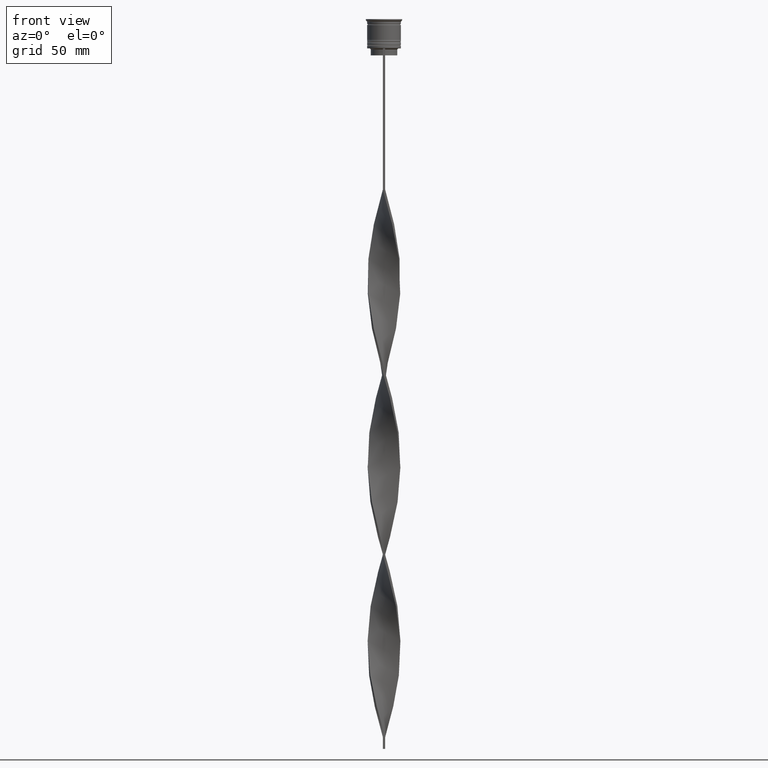
[diagram: clean part render]
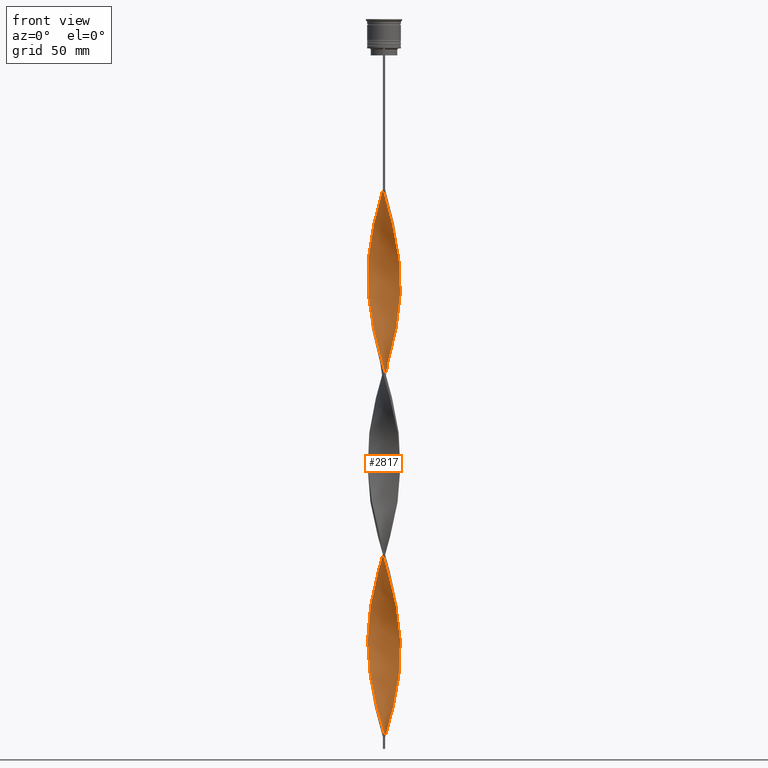
[diagram: same view with one face highlighted and labeled with its STEP entity id]
A machine part, front view. The second image highlights one B-rep face of the part: STEP entity #2817.
In plain terms, the highlighted face is a freeform B-spline surface patch.
Its self-contained STEP definition (entity closure, byte-faithful):
#3 = CARTESIAN_POINT ( 'NONE',  ( 6.960649146587689629, -1.050911947772329214, -110.1291666666666629 ) ) ;
#4 = CARTESIAN_POINT ( 'NONE',  ( 6.944720379959854029, -1.151482222195764349, -184.3875000000000455 ) ) ;
#10 = CARTESIAN_POINT ( 'NONE',  ( 6.464040919188345669, 2.732430236082642239, -280.1416666666666515 ) ) ;
#13 = CARTESIAN_POINT ( 'NONE',  ( 5.369226334478393703, -4.519005263234784131, -96.45000000000000284 ) ) ;
#17 = CARTESIAN_POINT ( 'NONE',  ( 6.248993995829447812, 3.241161289406941037, -125.7625000000000313 ) ) ;
#22 = CARTESIAN_POINT ( 'NONE',  ( 1.050911947772329880, 6.960649146587689629, -149.2125000000000057 ) ) ;
#30 = CARTESIAN_POINT ( 'NONE',  ( 6.835601151645846585, -1.588885425579185107, -264.5083333333333258 ) ) ;
#49 = CARTESIAN_POINT ( 'NONE',  ( 3.623436760271010915, 6.010050419448798920, -295.7750000000000341 ) ) ;
#51 = CARTESIAN_POINT ( 'NONE',  ( 6.710553156704005318, -2.126858903386040556, -262.5541666666666742 ) ) ;
#62 = CARTESIAN_POINT ( 'NONE',  ( -0.5000000000000000000, 7.000000000000002665, -229.3333333333333428 ) ) ;
#67 = CARTESIAN_POINT ( 'NONE',  ( 6.010050419448798920, -3.623436760271010471, -256.6916666666666629 ) ) ;
#80 = CARTESIAN_POINT ( 'NONE',  ( -3.623436760271011803, -6.010050419448798920, -217.6083333333333485 ) ) ;
#85 = CARTESIAN_POINT ( 'NONE',  ( -4.519005263234785907, -5.369226334478392815, -213.6999999999999886 ) ) ;
#110 = CARTESIAN_POINT ( 'NONE',  ( -6.464040919188350109, 2.732430236082644903, -100.3583333333333343 ) ) ;
#123 = VERTEX_POINT ( 'NONE', #3641 ) ;
#129 = CARTESIAN_POINT ( 'NONE',  ( 4.941572540085928722, -5.013572907112388677, -168.7541666666666629 ) ) ;
#142 = CARTESIAN_POINT ( 'NONE',  ( 0.05091194777232899843, -7.039350853412307707, -74.95416666666667993 ) ) ;
#150 = CARTESIAN_POINT ( 'NONE',  ( 6.811904111253551442, -1.687590702477057114, -182.4333333333333371 ) ) ;
#169 = CARTESIAN_POINT ( 'NONE',  ( -5.957011586770871503, 3.709988268859839788, -96.45000000000000284 ) ) ;
#178 = ORIENTED_EDGE ( 'NONE', *, *, #2079, .F. ) ;
#187 = CARTESIAN_POINT ( 'NONE',  ( 1.050911947772328547, -6.960649146587694958, -153.1208333333333655 ) ) ;
#193 = CARTESIAN_POINT ( 'NONE',  ( 2.732430236082642239, -6.464040919188345669, -84.72500000000000853 ) ) ;
#203 = CARTESIAN_POINT ( 'NONE',  ( -6.010050419448798920, 3.623436760271011359, -178.5249999999999773 ) ) ;
#204 = CARTESIAN_POINT ( 'NONE',  ( -5.957011586770871503, 3.709988268859839788, -252.7833333333333599 ) ) ;
#206 = CARTESIAN_POINT ( 'NONE',  ( -5.724879761844410275, -4.096437986383647534, -282.0958333333333599 ) ) ;
#208 = CARTESIAN_POINT ( 'NONE',  ( -2.732430236082645347, -6.464040919188350109, -139.4416666666666913 ) ) ;
#221 = CARTESIAN_POINT ( 'NONE',  ( -0.5000000000000000000, 7.000000000000002665, -229.3333333333333428 ) ) ;
#225 = CARTESIAN_POINT ( 'NONE',  ( 3.623436760271010915, 6.010050419448798920, -139.4416666666666913 ) ) ;
#226 = CARTESIAN_POINT ( 'NONE',  ( 7.039350853412307707, 0.05091194777232845026, -270.3708333333333940 ) ) ;
#239 = CARTESIAN_POINT ( 'NONE',  ( 5.303300858899104853, 4.596194077712556947, -131.6250000000000000 ) ) ;
#246 = CARTESIAN_POINT ( 'NONE',  ( -3.150435534158377404, 6.295221077053197334, -239.1041666666666856 ) ) ;
#249 = CARTESIAN_POINT ( 'NONE',  ( 6.992035616686076871, 0.6011970849840463371, -272.3249999999999886 ) ) ;
#265 = CARTESIAN_POINT ( 'NONE',  ( -0.05091194777233028906, -7.039350853412313036, -305.5458333333332916 ) ) ;
#282 = CARTESIAN_POINT ( 'NONE',  ( -6.710553156704011535, -2.126858903386041000, -274.2791666666666970 ) ) ;
#290 = VERTEX_POINT ( 'NONE', #380 ) ;
#309 = CARTESIAN_POINT ( 'NONE',  ( -6.835601151645846585, 1.588885425579185773, -186.3416666666666970 ) ) ;
#312 = CARTESIAN_POINT ( 'NONE',  ( 0.5000000000000008882, 6.999999999999997335, -151.1666666666666856 ) ) ;
#323 = CARTESIAN_POINT ( 'NONE',  ( 6.679087842547246190, 2.223699182758344328, -121.8541666666666998 ) ) ;
#331 = CARTESIAN_POINT ( 'NONE',  ( -3.623436760271011803, -6.010050419448798920, -217.6083333333333485 ) ) ;
#333 = FACE_OUTER_BOUND ( 'NONE', #2473, .T. ) ;
#344 = CARTESIAN_POINT ( 'NONE',  ( 1.151482222195764571, 6.944720379959854029, -223.4708333333333599 ) ) ;
#346 = CARTESIAN_POINT ( 'NONE',  ( -5.957011586770867950, -3.709988268859835348, -205.8833333333333258 ) ) ;
#352 = CARTESIAN_POINT ( 'NONE',  ( 4.941572540085925169, 5.013572907112383348, -289.9125000000000227 ) ) ;
#353 = CARTESIAN_POINT ( 'NONE',  ( 6.999999999999997335, -0.5000000000000004441, -268.4166666666666288 ) ) ;
#372 = CARTESIAN_POINT ( 'NONE',  ( -3.709988268859835348, 5.957011586770867062, -166.8000000000000114 ) ) ;
#374 = CARTESIAN_POINT ( 'NONE',  ( -6.811904111253547001, -1.687590702477052673, -198.0666666666666629 ) ) ;
#375 = CARTESIAN_POINT ( 'NONE',  ( -4.941572540085927834, 5.013572907112386901, -90.58750000000001990 ) ) ;
#380 = CARTESIAN_POINT ( 'NONE',  ( -0.5000000000000000000, 7.000000000000002665, -73.00000000000001421 ) ) ;
#394 = CARTESIAN_POINT ( 'NONE',  ( 6.811904111253547001, 1.687590702477053561, -276.2333333333333485 ) ) ;
#409 = CARTESIAN_POINT ( 'NONE',  ( -6.464040919188346557, -2.732430236082641350, -201.9750000000000227 ) ) ;
#412 = ORIENTED_EDGE ( 'NONE', *, *, #2571, .T. ) ;
#416 = CARTESIAN_POINT ( 'NONE',  ( -6.679087842547250631, 2.223699182758346549, -258.6458333333333712 ) ) ;
#435 = CARTESIAN_POINT ( 'NONE',  ( -1.151482222195767013, -6.944720379959854029, -145.3041666666666742 ) ) ;
#452 = CARTESIAN_POINT ( 'NONE',  ( 6.992035616686081312, -0.6011970849840487796, -186.3416666666666970 ) ) ;
#462 = CARTESIAN_POINT ( 'NONE',  ( 6.295221077053192893, -3.150435534158376516, -102.3125000000000142 ) ) ;
#469 = CARTESIAN_POINT ( 'NONE',  ( 6.679087842547249743, -2.223699182758350101, -180.4791666666666572 ) ) ;
#487 = CARTESIAN_POINT ( 'NONE',  ( 3.150435534158376516, -6.295221077053198222, -160.9375000000000568 ) ) ;
#489 = CARTESIAN_POINT ( 'NONE',  ( 3.150435534158376516, 6.295221077053192893, -141.3958333333333428 ) ) ;
#504 = CARTESIAN_POINT ( 'NONE',  ( -6.992035616686082200, 0.6011970849840480025, -108.1750000000000114 ) ) ;
#506 = CARTESIAN_POINT ( 'NONE',  ( -5.665029177712290753, 4.178815248312736763, -250.8291666666666515 ) ) ;
#507 = CARTESIAN_POINT ( 'NONE',  ( 1.588885425579185329, 6.835601151645846585, -147.2583333333333258 ) ) ;
#517 = CARTESIAN_POINT ( 'NONE',  ( -4.596194077712556947, 5.303300858899105741, -170.7083333333333428 ) ) ;
#520 = CARTESIAN_POINT ( 'NONE',  ( 1.151482222195764571, 6.944720379959854917, -223.4708333333333599 ) ) ;
#522 = CARTESIAN_POINT ( 'NONE',  ( 6.960649146587689629, -1.050911947772329214, -266.4625000000000341 ) ) ;
#530 = CARTESIAN_POINT ( 'NONE',  ( 3.241161289406941037, -6.248993995829447812, -86.67916666666668846 ) ) ;
#543 = CARTESIAN_POINT ( 'NONE',  ( 6.710553156704005318, -2.126858903386040556, -262.5541666666666742 ) ) ;
#560 = CARTESIAN_POINT ( 'NONE',  ( -5.303300858899108405, 4.596194077712561388, -248.8750000000000000 ) ) ;
#563 = CARTESIAN_POINT ( 'NONE',  ( -0.5000000000000000000, -6.999999999999997335, -73.00000000000001421 ) ) ;
#564 = CARTESIAN_POINT ( 'NONE',  ( 6.679087842547245302, 2.223699182758343884, -278.1875000000001137 ) ) ;
#578 = CARTESIAN_POINT ( 'NONE',  ( 6.295221077053197334, 3.150435534158379625, -200.0208333333333712 ) ) ;
#583 = CARTESIAN_POINT ( 'NONE',  ( 5.665029177712287201, 4.178815248312733210, -286.0041666666667197 ) ) ;
#594 = CARTESIAN_POINT ( 'NONE',  ( 7.039350853412307707, 0.05091194777232845026, -114.0375000000000227 ) ) ;
#615 = CARTESIAN_POINT ( 'NONE',  ( 4.941572540085925169, 5.013572907112383348, -133.5791666666666515 ) ) ;
#623 = CARTESIAN_POINT ( 'NONE',  ( 3.150435534158376072, 6.295221077053192005, -141.3958333333333144 ) ) ;
#624 = CARTESIAN_POINT ( 'NONE',  ( 4.178815248312741204, 5.665029177712288977, -211.7458333333333371 ) ) ;
#626 = CARTESIAN_POINT ( 'NONE',  ( -4.519005263234785907, -5.369226334478392815, -213.6999999999999886 ) ) ;
#630 = CARTESIAN_POINT ( 'NONE',  ( 5.369226334478393703, -4.519005263234784131, -252.7833333333333599 ) ) ;
#642 = CARTESIAN_POINT ( 'NONE',  ( 6.710553156704011535, 2.126858903386037003, -196.1125000000000114 ) ) ;
#644 = CARTESIAN_POINT ( 'NONE',  ( -6.464040919188346557, -2.732430236082641350, -201.9750000000000227 ) ) ;
#649 = CARTESIAN_POINT ( 'NONE',  ( 1.687590702477054005, -6.811904111253546112, -237.1500000000000057 ) ) ;
#664 = CARTESIAN_POINT ( 'NONE',  ( 1.588885425579185329, 6.835601151645846585, -303.5916666666666401 ) ) ;
#689 = CARTESIAN_POINT ( 'NONE',  ( -2.638647218772209868, -6.502887116878598661, -221.5166666666666799 ) ) ;
#692 = VERTEX_POINT ( 'NONE', #563 ) ;
#706 = CARTESIAN_POINT ( 'NONE',  ( 1.588885425579185329, 6.835601151645846585, -303.5916666666666401 ) ) ;
#708 = CARTESIAN_POINT ( 'NONE',  ( 7.039350853412307707, 0.05091194777232844332, -270.3708333333334508 ) ) ;
#721 = CARTESIAN_POINT ( 'NONE',  ( 3.709988268859836236, -5.957011586770867062, -88.63333333333333997 ) ) ;
#724 = CARTESIAN_POINT ( 'NONE',  ( 2.126858903386040556, -6.710553156704010647, -157.0291666666666970 ) ) ;
#726 = CARTESIAN_POINT ( 'NONE',  ( -4.519005263234787684, 5.369226334478397256, -88.63333333333333997 ) ) ;
#742 = CARTESIAN_POINT ( 'NONE',  ( -3.150435534158377848, 6.295221077053198222, -239.1041666666666856 ) ) ;
#750 = CARTESIAN_POINT ( 'NONE',  ( -6.010050419448805137, -3.623436760271012247, -123.8083333333333371 ) ) ;
#761 = CARTESIAN_POINT ( 'NONE',  ( -1.588885425579185551, 6.835601151645851026, -233.2416666666666742 ) ) ;
#766 = CARTESIAN_POINT ( 'NONE',  ( -5.013572907112387789, -4.941572540085928722, -129.6708333333333769 ) ) ;
#783 = CARTESIAN_POINT ( 'NONE',  ( 6.835601151645851026, 1.588885425579184218, -194.1583333333333314 ) ) ;
#785 = CARTESIAN_POINT ( 'NONE',  ( 4.096437986383645757, 5.724879761844404946, -137.4875000000000114 ) ) ;
#789 = CARTESIAN_POINT ( 'NONE',  ( -1.151482222195766791, -6.944720379959853140, -145.3041666666666742 ) ) ;
#793 = CARTESIAN_POINT ( 'NONE',  ( -3.623436760271012247, 6.010050419448805137, -84.72500000000000853 ) ) ;
#803 = CARTESIAN_POINT ( 'NONE',  ( 5.724879761844411163, 4.096437986383643981, -203.9291666666666742 ) ) ;
#806 = CARTESIAN_POINT ( 'NONE',  ( 2.126858903386041000, 6.710553156704005318, -145.3041666666666742 ) ) ;
#820 = CARTESIAN_POINT ( 'NONE',  ( -4.519005263234787684, 5.369226334478397256, -244.9666666666666686 ) ) ;
#822 = CARTESIAN_POINT ( 'NONE',  ( -2.223699182758346993, -6.679087842547250631, -297.7291666666666288 ) ) ;
#837 = CARTESIAN_POINT ( 'NONE',  ( -3.623436760271012247, 6.010050419448805137, -241.0583333333333087 ) ) ;
#840 = CARTESIAN_POINT ( 'NONE',  ( 4.178815248312734987, -5.665029177712287201, -246.9208333333333769 ) ) ;
#859 = CARTESIAN_POINT ( 'NONE',  ( -6.248993995829451364, 3.241161289406944590, -254.7375000000000114 ) ) ;
#864 = CARTESIAN_POINT ( 'NONE',  ( 6.835601151645846585, -1.588885425579185107, -264.5083333333333258 ) ) ;
#879 = CARTESIAN_POINT ( 'NONE',  ( 4.096437986383644869, 5.724879761844404058, -137.4875000000000114 ) ) ;
#881 = CARTESIAN_POINT ( 'NONE',  ( -6.010050419448805137, -3.623436760271012247, -280.1416666666666515 ) ) ;
#885 = CARTESIAN_POINT ( 'NONE',  ( 6.248993995829447812, 3.241161289406941037, -282.0958333333333599 ) ) ;
#895 = CARTESIAN_POINT ( 'NONE',  ( 6.811904111253547001, 1.687590702477053561, -119.9000000000000057 ) ) ;
#902 = CARTESIAN_POINT ( 'NONE',  ( 4.096437986383647534, -5.724879761844410275, -164.8458333333333599 ) ) ;
#904 = CARTESIAN_POINT ( 'NONE',  ( -1.050911947772329436, 6.960649146587694958, -231.2875000000000512 ) ) ;
#907 = CARTESIAN_POINT ( 'NONE',  ( 4.096437986383645757, 5.724879761844404946, -293.8208333333333258 ) ) ;
#922 = CARTESIAN_POINT ( 'NONE',  ( 6.248993995829453141, -3.241161289406942370, -176.5708333333333542 ) ) ;
#925 = CARTESIAN_POINT ( 'NONE',  ( -5.665029177712287201, -4.178815248312735875, -207.8375000000000057 ) ) ;
#930 = CARTESIAN_POINT ( 'NONE',  ( 1.151482222195764793, -6.944720379959848700, -235.1958333333333542 ) ) ;
#950 = CARTESIAN_POINT ( 'NONE',  ( 6.502887116878604878, 2.638647218772208092, -198.0666666666666629 ) ) ;
#952 = CARTESIAN_POINT ( 'NONE',  ( -3.150435534158380513, -6.295221077053191117, -219.5625000000000284 ) ) ;
#957 = CARTESIAN_POINT ( 'NONE',  ( 3.623436760271010915, 6.010050419448798920, -295.7750000000000341 ) ) ;
#969 = CARTESIAN_POINT ( 'NONE',  ( 0.5000000000000003331, 2.333333333333331261, -307.5000000000000000 ) ) ;
#973 = CARTESIAN_POINT ( 'NONE',  ( 0.05091194777233409158, 7.039350853412313036, -227.3791666666666913 ) ) ;
#976 = CARTESIAN_POINT ( 'NONE',  ( 3.709988268859836236, -5.957011586770867062, -244.9666666666666686 ) ) ;
#986 = CARTESIAN_POINT ( 'NONE',  ( 6.679087842547248854, -2.223699182758350101, -180.4791666666666572 ) ) ;
#993 = CARTESIAN_POINT ( 'NONE',  ( -2.126858903386041444, 6.710553156704010647, -78.86249999999999716 ) ) ;
#1016 = CARTESIAN_POINT ( 'NONE',  ( 4.178815248312734987, -5.665029177712287201, -246.9208333333333485 ) ) ;
#1034 = CARTESIAN_POINT ( 'NONE',  ( 1.050911947772328547, -6.960649146587694069, -153.1208333333333655 ) ) ;
#1037 = CARTESIAN_POINT ( 'NONE',  ( -4.178815248312738539, -5.665029177712290753, -133.5791666666666515 ) ) ;
#1043 = CARTESIAN_POINT ( 'NONE',  ( -6.835601151645851026, -1.588885425579185107, -272.3249999999999886 ) ) ;
#1056 = CARTESIAN_POINT ( 'NONE',  ( 6.464040919188350109, -2.732430236082645791, -178.5249999999999773 ) ) ;
#1064 = EDGE_CURVE ( 'NONE', #3574, #123, #2019, .T. ) ;
#1070 = CARTESIAN_POINT ( 'NONE',  ( 5.724879761844404946, -4.096437986383645757, -98.40416666666669698 ) ) ;
#1078 = CARTESIAN_POINT ( 'NONE',  ( -6.710553156704006206, 2.126858903386038335, -184.3875000000000455 ) ) ;
#1081 = CARTESIAN_POINT ( 'NONE',  ( -6.835601151645851026, -1.588885425579185107, -115.9916666666666742 ) ) ;
#1085 = CARTESIAN_POINT ( 'NONE',  ( -6.992035616686082200, 0.6011970849840480025, -108.1750000000000114 ) ) ;
#1089 = CARTESIAN_POINT ( 'NONE',  ( 6.835601151645846585, -1.588885425579185107, -108.1750000000000114 ) ) ;
#1098 = CARTESIAN_POINT ( 'NONE',  ( 2.638647218772208536, 6.502887116878598661, -299.6833333333332803 ) ) ;
#1100 = CARTESIAN_POINT ( 'NONE',  ( -4.941572540085928722, 5.013572907112387789, -90.58750000000000568 ) ) ;
#1104 = CARTESIAN_POINT ( 'NONE',  ( -1.687590702477056670, -6.811904111253551442, -143.3499999999999943 ) ) ;
#1114 = CARTESIAN_POINT ( 'NONE',  ( -4.596194077712561388, -5.303300858899108405, -131.6250000000000000 ) ) ;
#1117 = CARTESIAN_POINT ( 'NONE',  ( -6.295221077053198222, -3.150435534158377404, -278.1875000000001137 ) ) ;
#1123 = CARTESIAN_POINT ( 'NONE',  ( -4.519005263234787684, 5.369226334478397256, -88.63333333333333997 ) ) ;
#1129 = CARTESIAN_POINT ( 'NONE',  ( -1.588885425579185995, -6.835601151645846585, -225.4249999999999829 ) ) ;
#1136 = CARTESIAN_POINT ( 'NONE',  ( -6.502887116878604878, -2.638647218772208980, -276.2333333333333485 ) ) ;
#1140 = CARTESIAN_POINT ( 'NONE',  ( -3.241161289406944590, -6.248993995829451364, -293.8208333333333258 ) ) ;
#1141 = CARTESIAN_POINT ( 'NONE',  ( -1.151482222195763905, 6.944720379959848700, -157.0291666666666970 ) ) ;
#1143 = CARTESIAN_POINT ( 'NONE',  ( 6.502887116878598661, -2.638647218772208092, -260.6000000000000227 ) ) ;
#1146 = CARTESIAN_POINT ( 'NONE',  ( -3.241161289406944590, -6.248993995829451364, -137.4875000000000114 ) ) ;
#1160 = CARTESIAN_POINT ( 'NONE',  ( -6.960649146587694958, -1.050911947772328769, -270.3708333333334508 ) ) ;
#1163 = CARTESIAN_POINT ( 'NONE',  ( -5.303300858899108405, 4.596194077712561388, -248.8750000000000000 ) ) ;
#1171 = CARTESIAN_POINT ( 'NONE',  ( 4.519005263234785019, 5.369226334478392815, -135.5333333333333314 ) ) ;
#1178 = CARTESIAN_POINT ( 'NONE',  ( -4.178815248312738539, -5.665029177712290753, -289.9125000000000227 ) ) ;
#1196 = CARTESIAN_POINT ( 'NONE',  ( 6.811904111253547001, 1.687590702477053561, -119.9000000000000057 ) ) ;
#1201 = CARTESIAN_POINT ( 'NONE',  ( -5.369226334478397256, -4.519005263234786796, -284.0500000000000114 ) ) ;
#1221 = CARTESIAN_POINT ( 'NONE',  ( 7.039350853412313036, -0.05091194777233376545, -188.2958333333333485 ) ) ;
#1223 = CARTESIAN_POINT ( 'NONE',  ( -1.687590702477056670, -6.811904111253551442, -299.6833333333332803 ) ) ;
#1239 = CARTESIAN_POINT ( 'NONE',  ( 6.999999999999997335, -0.5000000000000004441, -112.0833333333333428 ) ) ;
#1240 = CARTESIAN_POINT ( 'NONE',  ( 6.960649146587694069, 1.050911947772331434, -192.2041666666667084 ) ) ;
#1245 = CARTESIAN_POINT ( 'NONE',  ( 6.248993995829447812, 3.241161289406941481, -282.0958333333334167 ) ) ;
#1247 = CARTESIAN_POINT ( 'NONE',  ( -1.687590702477053117, 6.811904111253547001, -158.9833333333333485 ) ) ;
#1258 = CARTESIAN_POINT ( 'NONE',  ( 6.835601151645851026, 1.588885425579184218, -194.1583333333333314 ) ) ;
#1261 = CARTESIAN_POINT ( 'NONE',  ( -6.679087842547245302, -2.223699182758345660, -200.0208333333333712 ) ) ;
#1265 = CARTESIAN_POINT ( 'NONE',  ( 5.303300858899104853, 4.596194077712556947, -287.9583333333333144 ) ) ;
#1283 = CARTESIAN_POINT ( 'NONE',  ( -6.679087842547245302, -2.223699182758345660, -200.0208333333333712 ) ) ;
#1295 = CARTESIAN_POINT ( 'NONE',  ( -1.050911947772329436, 6.960649146587694069, -231.2875000000000227 ) ) ;
#1301 = CARTESIAN_POINT ( 'NONE',  ( -1.050911947772329436, 6.960649146587694958, -74.95416666666667993 ) ) ;
#1322 = CARTESIAN_POINT ( 'NONE',  ( 6.960649146587689629, -1.050911947772329214, -266.4625000000000341 ) ) ;
#1334 = CARTESIAN_POINT ( 'NONE',  ( -0.5000000000000000000, 7.000000000000002665, -73.00000000000001421 ) ) ;
#1348 = CARTESIAN_POINT ( 'NONE',  ( 4.096437986383647534, -5.724879761844409387, -164.8458333333333599 ) ) ;
#1363 = CARTESIAN_POINT ( 'NONE',  ( 5.957011586770870615, -3.709988268859841121, -174.6166666666666742 ) ) ;
#1376 = CARTESIAN_POINT ( 'NONE',  ( 5.369226334478393703, -4.519005263234784131, -96.45000000000000284 ) ) ;
#1382 = CARTESIAN_POINT ( 'NONE',  ( -5.013572907112380683, 4.941572540085927834, -172.6624999999999943 ) ) ;
#1384 = CARTESIAN_POINT ( 'NONE',  ( -5.665029177712290753, 4.178815248312736763, -94.49583333333333712 ) ) ;
#1405 =( BOUNDED_CURVE ( )  B_SPLINE_CURVE ( 2, ( #1458, #142, #2041, #3291, #2621, #3922, #193, #530, #1772, #2367, #2060, #3007, #1376, #1070, #3251, #462, #1699, #3892, #1089, #2330, #2802, #594, #1514, #2124, #895, #3090, #3728, #17, #3754, #2099, #239, #615, #1171, #785, #225, #489, #3916, #806, #507, #1744, #2998, #2686, #1470, #1141, #2199, #1909, #2526, #3379, #372, #2857, #2177, #4015, #1869, #3449, #203, #3313, #1465, #2084, #3949, #2393, #3649, #3398, #3099, #3737, #2853, #1261, #644, #3153, #346, #925, #2172, #2872, #626, #2499, #80, #952, #2523, #2623, #1129, #3626, #2061, #3344, #2426, #3367, #1511, #2343, #1805, #3042, #1745, #840, #2687, #2445, #2088, #2726, #3935, #3676, #1143, #543, #864, #522, #2776, #226, #249, #3360, #1487, #564, #3699, #885, #3380, #583, #1826, #352, #2240, #907, #49, #3256, #1098, #1704, #706, #3218, #2879 ),
 .UNSPECIFIED., .F., .T. ) 
 B_SPLINE_CURVE_WITH_KNOTS ( ( 3, 2, 2, 2, 2, 2, 2, 2, 2, 2, 2, 2, 2, 2, 2, 2, 2, 2, 2, 2, 2, 2, 2, 2, 2, 2, 2, 2, 2, 2, 2, 2, 2, 2, 2, 2, 2, 2, 2, 2, 2, 2, 2, 2, 2, 2, 2, 2, 2, 2, 2, 2, 2, 2, 2, 2, 2, 2, 2, 2, 3 ),
 ( 0.000000000000000000, 0.01250000000000000243, 0.02500000000000000486, 0.03749999999999999861, 0.05000000000000000971, 0.06250000000000000000, 0.07499999999999999722, 0.08749999999999998057, 0.1000000000000000194, 0.1125000000000000028, 0.1250000000000000000, 0.1375000000000000111, 0.1499999999999999944, 0.1625000000000000056, 0.1749999999999999611, 0.1875000000000000000, 0.2000000000000000389, 0.2124999999999999944, 0.2250000000000000056, 0.2374999999999999611, 0.2500000000000000000, 0.2625000000000000111, 0.2750000000000000222, 0.2874999999999999778, 0.2999999999999999889, 0.3125000000000000000, 0.3250000000000000111, 0.3375000000000000777, 0.3499999999999999223, 0.3624999999999999889, 0.3750000000000000000, 0.3875000000000000111, 0.4000000000000000777, 0.4124999999999999223, 0.4249999999999999889, 0.4375000000000000000, 0.4500000000000000111, 0.4625000000000000777, 0.4749999999999999223, 0.4874999999999999889, 0.5000000000000000000, 0.5124999999999999556, 0.5250000000000000222, 0.5374999999999999778, 0.5500000000000000444, 0.5625000000000000000, 0.5749999999999999556, 0.5875000000000000222, 0.5999999999999999778, 0.6125000000000000444, 0.6250000000000000000, 0.6374999999999999556, 0.6500000000000000222, 0.6624999999999999778, 0.6750000000000001554, 0.6875000000000000000, 0.6999999999999998446, 0.7125000000000000222, 0.7249999999999999778, 0.7375000000000001554, 0.7500000000000000000 ),
 .UNSPECIFIED. ) 
 CURVE ( )  GEOMETRIC_REPRESENTATION_ITEM ( )  RATIONAL_B_SPLINE_CURVE ( ( 1.000000000000000000, 0.9969173337331279638, 1.000000000000000000, 0.9969173337331279638, 1.000000000000000000, 0.9969173337331279638, 1.000000000000000000, 0.9969173337331279638, 1.000000000000000000, 0.9969173337331279638, 1.000000000000000000, 0.9969173337331279638, 1.000000000000000000, 0.9969173337331279638, 1.000000000000000000, 0.9969173337331279638, 1.000000000000000000, 0.9969173337331279638, 1.000000000000000000, 0.9969173337331279638, 1.000000000000000000, 0.9969173337331279638, 1.000000000000000000, 0.9969173337331279638, 1.000000000000000000, 0.9969173337331279638, 1.000000000000000000, 0.9969173337331279638, 1.000000000000000000, 0.9969173337331279638, 1.000000000000000000, 0.9969173337331279638, 1.000000000000000000, 0.9969173337331279638, 1.000000000000000000, 0.9969173337331279638, 1.000000000000000000, 0.9969173337331279638, 1.000000000000000000, 0.9969173337331279638, 1.000000000000000000, 0.9969173337331279638, 1.000000000000000000, 0.9969173337331279638, 1.000000000000000000, 0.9969173337331279638, 1.000000000000000000, 0.9969173337331279638, 1.000000000000000000, 0.9969173337331279638, 1.000000000000000000, 0.9969173337331279638, 1.000000000000000000, 0.9969173337331279638, 1.000000000000000000, 0.9969173337331279638, 1.000000000000000000, 0.9969173337331279638, 1.000000000000000000, 0.9969173337331279638, 1.000000000000000000, 0.9969173337331279638, 1.000000000000000000, 0.9969173337331279638, 1.000000000000000000, 0.9969173337331279638, 1.000000000000000000, 0.9969173337331279638, 1.000000000000000000, 0.9969173337331279638, 1.000000000000000000, 0.9969173337331279638, 1.000000000000000000, 0.9969173337331279638, 1.000000000000000000, 0.9969173337331279638, 1.000000000000000000, 0.9969173337331279638, 1.000000000000000000, 0.9969173337331279638, 1.000000000000000000, 0.9969173337331279638, 1.000000000000000000, 0.9969173337331279638, 1.000000000000000000, 0.9969173337331279638, 1.000000000000000000, 0.9969173337331279638, 1.000000000000000000, 0.9969173337331279638, 1.000000000000000000, 0.9969173337331279638, 1.000000000000000000, 0.9969173337331279638, 1.000000000000000000, 0.9969173337331279638, 1.000000000000000000, 0.9969173337331279638, 1.000000000000000000, 0.9969173337331279638, 1.000000000000000000, 0.9969173337331279638, 1.000000000000000000, 0.9969173337331279638, 1.000000000000000000, 0.9969173337331279638, 1.000000000000000000, 0.9969173337331279638, 1.000000000000000000, 0.9969173337331279638, 1.000000000000000000, 0.9969173337331279638, 1.000000000000000000, 0.9969173337331279638, 1.000000000000000000, 0.9969173337331279638, 1.000000000000000000, 0.9969173337331279638, 1.000000000000000000, 0.9969173337331279638, 1.000000000000000000 ) ) 
 REPRESENTATION_ITEM ( '' )  );
#1410 = CARTESIAN_POINT ( 'NONE',  ( -7.039350853412313036, 0.05091194777232976171, -110.1291666666666629 ) ) ;
#1418 = CARTESIAN_POINT ( 'NONE',  ( -2.638647218772209424, 6.502887116878603990, -80.81666666666667709 ) ) ;
#1430 = CARTESIAN_POINT ( 'NONE',  ( 5.665029177712289865, -4.178815248312741204, -172.6624999999999943 ) ) ;
#1432 = CARTESIAN_POINT ( 'NONE',  ( -7.039350853412313036, 0.05091194777232975477, -266.4625000000000341 ) ) ;
#1434 = CARTESIAN_POINT ( 'NONE',  ( -6.960649146587694069, -1.050911947772328769, -114.0375000000000227 ) ) ;
#1447 = CARTESIAN_POINT ( 'NONE',  ( 0.6011970849840492237, 6.992035616686081312, -225.4249999999999829 ) ) ;
#1450 = CARTESIAN_POINT ( 'NONE',  ( -4.596194077712561388, -5.303300858899108405, -287.9583333333333144 ) ) ;
#1452 = CARTESIAN_POINT ( 'NONE',  ( -6.295221077053198222, -3.150435534158377404, -121.8541666666666998 ) ) ;
#1458 = CARTESIAN_POINT ( 'NONE',  ( -0.5000000000000000000, -6.999999999999997335, -73.00000000000001421 ) ) ;
#1465 = CARTESIAN_POINT ( 'NONE',  ( -6.502887116878598661, 2.638647218772208980, -182.4333333333333371 ) ) ;
#1466 = CARTESIAN_POINT ( 'NONE',  ( -2.126858903386041444, 6.710553156704010647, -235.1958333333333542 ) ) ;
#1467 = VECTOR ( 'NONE', #3247, 1000.000000000000000 ) ;
#1469 = CARTESIAN_POINT ( 'NONE',  ( -6.811904111253551442, 1.687590702477056226, -260.6000000000000227 ) ) ;
#1470 = CARTESIAN_POINT ( 'NONE',  ( -0.6011970849840458930, 6.992035616686076871, -155.0750000000000171 ) ) ;
#1484 = CARTESIAN_POINT ( 'NONE',  ( -6.944720379959854029, 1.151482222195766569, -262.5541666666666742 ) ) ;
#1487 = CARTESIAN_POINT ( 'NONE',  ( 6.811904111253547001, 1.687590702477053561, -276.2333333333333485 ) ) ;
#1500 = CARTESIAN_POINT ( 'NONE',  ( 5.665029177712287201, 4.178815248312733210, -129.6708333333333769 ) ) ;
#1503 = CARTESIAN_POINT ( 'NONE',  ( -4.941572540085928722, 5.013572907112387789, -246.9208333333333485 ) ) ;
#1511 = CARTESIAN_POINT ( 'NONE',  ( 1.687590702477054005, -6.811904111253546112, -237.1500000000000057 ) ) ;
#1514 = CARTESIAN_POINT ( 'NONE',  ( 6.992035616686076871, 0.6011970849840463371, -115.9916666666666742 ) ) ;
#1523 = CARTESIAN_POINT ( 'NONE',  ( 6.811904111253551442, -1.687590702477057114, -182.4333333333333371 ) ) ;
#1525 = CARTESIAN_POINT ( 'NONE',  ( -7.039350853412313036, 0.05091194777232976171, -266.4625000000000341 ) ) ;
#1549 = CARTESIAN_POINT ( 'NONE',  ( -0.6011970849840458930, 6.992035616686076871, -155.0750000000000171 ) ) ;
#1551 = CARTESIAN_POINT ( 'NONE',  ( -0.5000000000000000000, -6.999999999999997335, -73.00000000000001421 ) ) ;
#1562 = CARTESIAN_POINT ( 'NONE',  ( 2.638647218772208536, 6.502887116878598661, -143.3499999999999943 ) ) ;
#1568 = CARTESIAN_POINT ( 'NONE',  ( -1.588885425579185995, -6.835601151645846585, -225.4249999999999829 ) ) ;
#1589 = CARTESIAN_POINT ( 'NONE',  ( -0.5000000000000000000, -6.999999999999997335, -229.3333333333333428 ) ) ;
#1609 = CARTESIAN_POINT ( 'NONE',  ( -6.248993995829449588, -3.241161289406938373, -203.9291666666666742 ) ) ;
#1620 = CARTESIAN_POINT ( 'NONE',  ( -6.999999999999997335, 0.5000000000000013323, -190.2500000000000000 ) ) ;
#1627 = CARTESIAN_POINT ( 'NONE',  ( -4.941572540085927834, -5.013572907112379795, -211.7458333333333087 ) ) ;
#1646 = CARTESIAN_POINT ( 'NONE',  ( 0.6011970849840467812, -6.992035616686076871, -233.2416666666666742 ) ) ;
#1666 = CARTESIAN_POINT ( 'NONE',  ( 5.724879761844404058, -4.096437986383644869, -98.40416666666669698 ) ) ;
#1670 = CARTESIAN_POINT ( 'NONE',  ( 2.638647218772208536, -6.502887116878604878, -158.9833333333333485 ) ) ;
#1672 = CARTESIAN_POINT ( 'NONE',  ( 3.623436760271011803, -6.010050419448805137, -162.8916666666666515 ) ) ;
#1678 = CARTESIAN_POINT ( 'NONE',  ( -6.248993995829451364, 3.241161289406944590, -254.7375000000000114 ) ) ;
#1690 = CARTESIAN_POINT ( 'NONE',  ( -7.000000000000002665, -0.4999999999999995559, -112.0833333333333428 ) ) ;
#1695 = CARTESIAN_POINT ( 'NONE',  ( -5.013572907112386901, -4.941572540085927834, -129.6708333333333769 ) ) ;
#1699 = CARTESIAN_POINT ( 'NONE',  ( 6.502887116878598661, -2.638647218772208092, -104.2666666666666799 ) ) ;
#1704 = CARTESIAN_POINT ( 'NONE',  ( 2.126858903386041000, 6.710553156704005318, -301.6374999999999886 ) ) ;
#1706 = CARTESIAN_POINT ( 'NONE',  ( 6.944720379959854917, -1.151482222195764349, -184.3875000000000455 ) ) ;
#1712 = CARTESIAN_POINT ( 'NONE',  ( -5.724879761844410275, -4.096437986383647534, -125.7625000000000313 ) ) ;
#1728 = CARTESIAN_POINT ( 'NONE',  ( 6.502887116878604878, 2.638647218772208092, -198.0666666666666629 ) ) ;
#1740 = CARTESIAN_POINT ( 'NONE',  ( -3.623436760271012247, 6.010050419448805137, -241.0583333333333087 ) ) ;
#1742 = CARTESIAN_POINT ( 'NONE',  ( -4.596194077712561388, -5.303300858899108405, -287.9583333333333144 ) ) ;
#1744 = CARTESIAN_POINT ( 'NONE',  ( 1.050911947772329880, 6.960649146587689629, -149.2125000000000057 ) ) ;
#1745 = CARTESIAN_POINT ( 'NONE',  ( 3.709988268859836236, -5.957011586770867062, -244.9666666666666686 ) ) ;
#1747 = CARTESIAN_POINT ( 'NONE',  ( -7.039350853412313036, 0.05091194777232975477, -110.1291666666666629 ) ) ;
#1759 = CARTESIAN_POINT ( 'NONE',  ( -2.638647218772209424, 6.502887116878603990, -237.1500000000000057 ) ) ;
#1761 = CARTESIAN_POINT ( 'NONE',  ( -6.960649146587694069, -1.050911947772328769, -270.3708333333333940 ) ) ;
#1772 = CARTESIAN_POINT ( 'NONE',  ( 3.709988268859836236, -5.957011586770867062, -88.63333333333333997 ) ) ;
#1799 = CARTESIAN_POINT ( 'NONE',  ( 0.4999999999999991673, -7.000000000000002665, -307.5000000000000000 ) ) ;
#1805 = CARTESIAN_POINT ( 'NONE',  ( 2.732430236082642239, -6.464040919188345669, -241.0583333333333087 ) ) ;
#1820 = CARTESIAN_POINT ( 'NONE',  ( 6.010050419448806025, 3.623436760271011803, -201.9750000000000227 ) ) ;
#1822 = CARTESIAN_POINT ( 'NONE',  ( 4.178815248312741204, 5.665029177712288977, -211.7458333333333087 ) ) ;
#1826 = CARTESIAN_POINT ( 'NONE',  ( 5.303300858899104853, 4.596194077712556947, -287.9583333333333144 ) ) ;
#1850 = CARTESIAN_POINT ( 'NONE',  ( -0.05091194777232811719, 7.039350853412307707, -153.1208333333333655 ) ) ;
#1863 = CARTESIAN_POINT ( 'NONE',  ( 6.710553156704005318, -2.126858903386040556, -106.2208333333333456 ) ) ;
#1869 = CARTESIAN_POINT ( 'NONE',  ( -5.369226334478392815, 4.519005263234785019, -174.6166666666666742 ) ) ;
#1870 = CARTESIAN_POINT ( 'NONE',  ( 2.732430236082642239, -6.464040919188345669, -241.0583333333333087 ) ) ;
#1871 = CARTESIAN_POINT ( 'NONE',  ( -5.957011586770871503, 3.709988268859839788, -96.45000000000000284 ) ) ;
#1873 = CARTESIAN_POINT ( 'NONE',  ( 5.013572907112384236, -4.941572540085925169, -94.49583333333333712 ) ) ;
#1883 = CARTESIAN_POINT ( 'NONE',  ( 4.596194077712562276, 5.303300858899107517, -209.7916666666666572 ) ) ;
#1890 = CARTESIAN_POINT ( 'NONE',  ( 1.050911947772329880, 6.960649146587689629, -305.5458333333332916 ) ) ;
#1892 = CARTESIAN_POINT ( 'NONE',  ( 1.687590702477054005, -6.811904111253546112, -80.81666666666667709 ) ) ;
#1902 = CARTESIAN_POINT ( 'NONE',  ( 3.150435534158376960, -6.295221077053199110, -160.9375000000000284 ) ) ;
#1909 = CARTESIAN_POINT ( 'NONE',  ( -2.223699182758343884, 6.679087842547246190, -160.9375000000000284 ) ) ;
#1910 = CARTESIAN_POINT ( 'NONE',  ( 2.638647218772208536, 6.502887116878598661, -299.6833333333332803 ) ) ;
#1933 = CARTESIAN_POINT ( 'NONE',  ( 5.665029177712287201, 4.178815248312733210, -286.0041666666667197 ) ) ;
#1953 = CARTESIAN_POINT ( 'NONE',  ( 6.679087842547246190, 2.223699182758344328, -278.1875000000001137 ) ) ;
#1967 = CARTESIAN_POINT ( 'NONE',  ( 4.178815248312734987, -5.665029177712287201, -90.58750000000000568 ) ) ;
#1972 = CARTESIAN_POINT ( 'NONE',  ( -1.687590702477056670, -6.811904111253551442, -143.3499999999999943 ) ) ;
#1981 = CARTESIAN_POINT ( 'NONE',  ( -4.519005263234787684, 5.369226334478397256, -244.9666666666666686 ) ) ;
#1991 = CARTESIAN_POINT ( 'NONE',  ( 0.05091194777232899149, -7.039350853412307707, -74.95416666666667993 ) ) ;
#1996 = CARTESIAN_POINT ( 'NONE',  ( 7.000000000000002665, 0.4999999999999987232, -190.2500000000000000 ) ) ;
#2011 = CARTESIAN_POINT ( 'NONE',  ( -6.295221077053197334, -3.150435534158376960, -121.8541666666666998 ) ) ;
#2014 = ORIENTED_EDGE ( 'NONE', *, *, #2669, .T. ) ;
#2019 = B_SPLINE_CURVE_WITH_KNOTS ( 'NONE', 3,
 ( #3459, #969, #2870, #3443 ),
 .UNSPECIFIED., .F., .F.,
 ( 4, 4 ),
 ( 0.000000000000000000, 1.000000000000000000 ),
 .UNSPECIFIED. ) ;
#2025 = CARTESIAN_POINT ( 'NONE',  ( -2.732430236082645347, -6.464040919188350109, -139.4416666666666913 ) ) ;
#2041 = CARTESIAN_POINT ( 'NONE',  ( 0.6011970849840467812, -6.992035616686076871, -76.90833333333334565 ) ) ;
#2050 = CARTESIAN_POINT ( 'NONE',  ( -3.623436760271012247, 6.010050419448805137, -84.72500000000000853 ) ) ;
#2052 = CARTESIAN_POINT ( 'NONE',  ( -4.941572540085927834, 5.013572907112386901, -246.9208333333333769 ) ) ;
#2054 = CARTESIAN_POINT ( 'NONE',  ( -6.679087842547250631, 2.223699182758346549, -102.3125000000000142 ) ) ;
#2060 = CARTESIAN_POINT ( 'NONE',  ( 4.596194077712557835, -5.303300858899104853, -92.54166666666667140 ) ) ;
#2061 = CARTESIAN_POINT ( 'NONE',  ( -0.5000000000000000000, -6.999999999999997335, -229.3333333333333428 ) ) ;
#2069 = CARTESIAN_POINT ( 'NONE',  ( -1.151482222195766791, -6.944720379959853140, -301.6374999999999886 ) ) ;
#2079 = EDGE_CURVE ( 'NONE', #692, #3574, #1405, .T. ) ;
#2084 = CARTESIAN_POINT ( 'NONE',  ( -6.710553156704006206, 2.126858903386038335, -184.3875000000000455 ) ) ;
#2088 = CARTESIAN_POINT ( 'NONE',  ( 5.369226334478393703, -4.519005263234784131, -252.7833333333333599 ) ) ;
#2099 = CARTESIAN_POINT ( 'NONE',  ( 5.665029177712287201, 4.178815248312733210, -129.6708333333333769 ) ) ;
#2106 = CARTESIAN_POINT ( 'NONE',  ( 4.519005263234785019, 5.369226334478392815, -135.5333333333333314 ) ) ;
#2110 = CARTESIAN_POINT ( 'NONE',  ( -0.6011970849840483355, -6.992035616686081312, -303.5916666666666401 ) ) ;
#2124 = CARTESIAN_POINT ( 'NONE',  ( 6.944720379959848700, 1.151482222195764349, -117.9458333333333400 ) ) ;
#2129 = CARTESIAN_POINT ( 'NONE',  ( 4.941572540085925169, 5.013572907112384236, -133.5791666666666515 ) ) ;
#2135 = CARTESIAN_POINT ( 'NONE',  ( 0.5000000000000008882, 6.999999999999997335, -307.5000000000000000 ) ) ;
#2137 = CARTESIAN_POINT ( 'NONE',  ( -3.241161289406940593, 6.248993995829447812, -164.8458333333333599 ) ) ;
#2149 = CARTESIAN_POINT ( 'NONE',  ( 7.039350853412307707, 0.05091194777232844332, -114.0375000000000227 ) ) ;
#2151 = CARTESIAN_POINT ( 'NONE',  ( 5.665029177712289865, -4.178815248312741204, -172.6624999999999943 ) ) ;
#2153 = CARTESIAN_POINT ( 'NONE',  ( -1.588885425579185551, 6.835601151645851026, -233.2416666666666742 ) ) ;
#2172 = CARTESIAN_POINT ( 'NONE',  ( -5.303300858899105741, -4.596194077712556059, -209.7916666666666572 ) ) ;
#2177 = CARTESIAN_POINT ( 'NONE',  ( -4.596194077712556947, 5.303300858899105741, -170.7083333333333428 ) ) ;
#2179 = CARTESIAN_POINT ( 'NONE',  ( 2.223699182758344328, -6.679087842547246190, -239.1041666666666856 ) ) ;
#2180 = CARTESIAN_POINT ( 'NONE',  ( -2.223699182758344328, 6.679087842547247078, -160.9375000000000568 ) ) ;
#2193 = CARTESIAN_POINT ( 'NONE',  ( 3.241161289406943258, 6.248993995829452253, -215.6541666666666970 ) ) ;
#2199 = CARTESIAN_POINT ( 'NONE',  ( -1.687590702477053117, 6.811904111253547001, -158.9833333333333485 ) ) ;
#2200 = CARTESIAN_POINT ( 'NONE',  ( 2.126858903386041000, 6.710553156704005318, -301.6374999999999886 ) ) ;
#2213 = CARTESIAN_POINT ( 'NONE',  ( 5.303300858899108405, -4.596194077712562276, -170.7083333333333428 ) ) ;
#2216 = CARTESIAN_POINT ( 'NONE',  ( -6.960649146587689629, 1.050911947772333210, -188.2958333333333485 ) ) ;
#2220 = CARTESIAN_POINT ( 'NONE',  ( 4.519005263234785019, 5.369226334478392815, -291.8666666666666742 ) ) ;
#2240 = CARTESIAN_POINT ( 'NONE',  ( 4.519005263234785019, 5.369226334478392815, -291.8666666666666742 ) ) ;
#2242 = CARTESIAN_POINT ( 'NONE',  ( -2.638647218772209424, 6.502887116878603990, -80.81666666666667709 ) ) ;
#2262 = CARTESIAN_POINT ( 'NONE',  ( 6.295221077053192005, -3.150435534158376072, -258.6458333333333712 ) ) ;
#2273 = CARTESIAN_POINT ( 'NONE',  ( -2.638647218772209424, 6.502887116878603990, -237.1500000000000057 ) ) ;
#2279 = CARTESIAN_POINT ( 'NONE',  ( -3.709988268859841121, -5.957011586770870615, -135.5333333333333314 ) ) ;
#2295 = CARTESIAN_POINT ( 'NONE',  ( 1.588885425579184218, -6.835601151645851026, -155.0750000000000171 ) ) ;
#2298 = CARTESIAN_POINT ( 'NONE',  ( -6.502887116878604878, -2.638647218772208980, -119.9000000000000057 ) ) ;
#2307 = CARTESIAN_POINT ( 'NONE',  ( -0.5000000000000000000, -6.999999999999997335, -73.00000000000001421 ) ) ;
#2322 = CARTESIAN_POINT ( 'NONE',  ( -5.724879761844409387, -4.096437986383647534, -125.7625000000000313 ) ) ;
#2326 = CARTESIAN_POINT ( 'NONE',  ( -6.710553156704010647, -2.126858903386041000, -117.9458333333333400 ) ) ;
#2330 = CARTESIAN_POINT ( 'NONE',  ( 6.960649146587689629, -1.050911947772329214, -110.1291666666666629 ) ) ;
#2337 = CARTESIAN_POINT ( 'NONE',  ( 0.4999999999999991673, -7.000000000000002665, -151.1666666666666856 ) ) ;
#2343 = CARTESIAN_POINT ( 'NONE',  ( 2.223699182758343884, -6.679087842547245302, -239.1041666666666856 ) ) ;
#2351 = CARTESIAN_POINT ( 'NONE',  ( 5.303300858899108405, -4.596194077712562276, -170.7083333333333428 ) ) ;
#2358 = CARTESIAN_POINT ( 'NONE',  ( -4.178815248312738539, -5.665029177712290753, -133.5791666666666515 ) ) ;
#2367 = CARTESIAN_POINT ( 'NONE',  ( 4.178815248312734987, -5.665029177712287201, -90.58750000000001990 ) ) ;
#2393 = CARTESIAN_POINT ( 'NONE',  ( -6.960649146587689629, 1.050911947772333432, -188.2958333333333485 ) ) ;
#2394 = CARTESIAN_POINT ( 'NONE',  ( -6.295221077053197334, -3.150435534158376960, -278.1875000000001137 ) ) ;
#2397 = CARTESIAN_POINT ( 'NONE',  ( 0.4999999999999991673, -7.000000000000002665, -307.5000000000000000 ) ) ;
#2411 = CARTESIAN_POINT ( 'NONE',  ( 6.464040919188345669, 2.732430236082642239, -123.8083333333333371 ) ) ;
#2414 = CARTESIAN_POINT ( 'NONE',  ( 3.709988268859842009, 5.957011586770870615, -213.6999999999999886 ) ) ;
#2426 = CARTESIAN_POINT ( 'NONE',  ( 0.6011970849840467812, -6.992035616686076871, -233.2416666666666742 ) ) ;
#2436 = CARTESIAN_POINT ( 'NONE',  ( 5.957011586770867062, 3.709988268859835348, -127.7166666666666686 ) ) ;
#2439 = CARTESIAN_POINT ( 'NONE',  ( -6.835601151645851026, -1.588885425579185107, -272.3249999999999886 ) ) ;
#2445 = CARTESIAN_POINT ( 'NONE',  ( 5.013572907112383348, -4.941572540085925169, -250.8291666666666515 ) ) ;
#2460 = CARTESIAN_POINT ( 'NONE',  ( 2.223699182758350101, 6.679087842547249743, -219.5625000000000284 ) ) ;
#2467 = CARTESIAN_POINT ( 'NONE',  ( 4.596194077712557835, -5.303300858899104853, -92.54166666666667140 ) ) ;
#2473 = EDGE_LOOP ( 'NONE', ( #412, #2014, #3939, #178 ) ) ;
#2480 = CARTESIAN_POINT ( 'NONE',  ( -5.303300858899105741, -4.596194077712556059, -209.7916666666666572 ) ) ;
#2499 = CARTESIAN_POINT ( 'NONE',  ( -4.096437986383643981, -5.724879761844405834, -215.6541666666666970 ) ) ;
#2505 = CARTESIAN_POINT ( 'NONE',  ( 4.941572540085925169, 5.013572907112384236, -289.9125000000000227 ) ) ;
#2521 = CARTESIAN_POINT ( 'NONE',  ( 4.941572540085927834, -5.013572907112387789, -168.7541666666666913 ) ) ;
#2523 = CARTESIAN_POINT ( 'NONE',  ( -2.638647218772209868, -6.502887116878598661, -221.5166666666666799 ) ) ;
#2526 = CARTESIAN_POINT ( 'NONE',  ( -2.732430236082641350, 6.464040919188345669, -162.8916666666666515 ) ) ;
#2527 = CARTESIAN_POINT ( 'NONE',  ( -6.992035616686076871, -0.6011970849840454489, -194.1583333333333314 ) ) ;
#2529 = CARTESIAN_POINT ( 'NONE',  ( 2.732430236082642239, -6.464040919188345669, -84.72500000000000853 ) ) ;
#2546 = CARTESIAN_POINT ( 'NONE',  ( -1.588885425579185551, 6.835601151645851026, -76.90833333333334565 ) ) ;
#2547 = CARTESIAN_POINT ( 'NONE',  ( -6.464040919188350109, 2.732430236082644903, -100.3583333333333343 ) ) ;
#2566 = CARTESIAN_POINT ( 'NONE',  ( -0.6011970849840483355, -6.992035616686081312, -147.2583333333333258 ) ) ;
#2568 = CARTESIAN_POINT ( 'NONE',  ( -5.957011586770867950, -3.709988268859835348, -205.8833333333333258 ) ) ;
#2571 = EDGE_CURVE ( 'NONE', #692, #290, #2614, .T. ) ;
#2591 = CARTESIAN_POINT ( 'NONE',  ( -4.096437986383647534, 5.724879761844409387, -86.67916666666667425 ) ) ;
#2597 = CARTESIAN_POINT ( 'NONE',  ( -6.944720379959853140, 1.151482222195766347, -262.5541666666666742 ) ) ;
#2603 = CARTESIAN_POINT ( 'NONE',  ( 0.6011970849840467812, -6.992035616686076871, -76.90833333333334565 ) ) ;
#2607 = CARTESIAN_POINT ( 'NONE',  ( 7.039350853412313036, -0.05091194777233376545, -188.2958333333333485 ) ) ;
#2614 = LINE ( 'NONE', #2307, #1467 ) ;
#2621 = CARTESIAN_POINT ( 'NONE',  ( 1.687590702477054005, -6.811904111253546112, -80.81666666666667709 ) ) ;
#2623 = CARTESIAN_POINT ( 'NONE',  ( -2.126858903386038779, -6.710553156704006206, -223.4708333333333599 ) ) ;
#2627 = CARTESIAN_POINT ( 'NONE',  ( -6.295221077053190228, 3.150435534158379625, -180.4791666666666572 ) ) ;
#2630 = CARTESIAN_POINT ( 'NONE',  ( -5.369226334478397256, -4.519005263234786796, -127.7166666666666686 ) ) ;
#2641 = CARTESIAN_POINT ( 'NONE',  ( -1.588885425579185551, 6.835601151645851026, -76.90833333333334565 ) ) ;
#2652 = CARTESIAN_POINT ( 'NONE',  ( -3.241161289406944590, -6.248993995829451364, -137.4875000000000114 ) ) ;
#2656 = CARTESIAN_POINT ( 'NONE',  ( -3.709988268859841121, -5.957011586770870615, -135.5333333333333314 ) ) ;
#2659 = CARTESIAN_POINT ( 'NONE',  ( -3.150435534158377848, 6.295221077053198222, -82.77083333333335702 ) ) ;
#2666 = CARTESIAN_POINT ( 'NONE',  ( 6.295221077053196446, 3.150435534158379181, -200.0208333333333712 ) ) ;
#2668 = CARTESIAN_POINT ( 'NONE',  ( -6.010050419448805137, -3.623436760271012247, -280.1416666666666515 ) ) ;
#2669 = EDGE_CURVE ( 'NONE', #290, #123, #3643, .T. ) ;
#2671 = CARTESIAN_POINT ( 'NONE',  ( -6.010050419448805137, -3.623436760271012247, -123.8083333333333371 ) ) ;
#2673 = CARTESIAN_POINT ( 'NONE',  ( -4.096437986383647534, 5.724879761844410275, -86.67916666666668846 ) ) ;
#2681 = CARTESIAN_POINT ( 'NONE',  ( -3.241161289406944590, -6.248993995829451364, -293.8208333333333258 ) ) ;
#2685 = CARTESIAN_POINT ( 'NONE',  ( -4.178815248312738539, -5.665029177712290753, -289.9125000000000227 ) ) ;
#2686 = CARTESIAN_POINT ( 'NONE',  ( -0.05091194777232812413, 7.039350853412307707, -153.1208333333333655 ) ) ;
#2687 = CARTESIAN_POINT ( 'NONE',  ( 4.596194077712557835, -5.303300858899104853, -248.8750000000000000 ) ) ;
#2690 = CARTESIAN_POINT ( 'NONE',  ( -5.369226334478397256, -4.519005263234786796, -127.7166666666666686 ) ) ;
#2705 = CARTESIAN_POINT ( 'NONE',  ( -6.992035616686082200, 0.6011970849840480025, -264.5083333333333258 ) ) ;
#2722 = CARTESIAN_POINT ( 'NONE',  ( 4.596194077712562276, 5.303300858899107517, -209.7916666666666572 ) ) ;
#2726 = CARTESIAN_POINT ( 'NONE',  ( 5.724879761844404946, -4.096437986383645757, -254.7375000000000114 ) ) ;
#2728 = CARTESIAN_POINT ( 'NONE',  ( -4.178815248312733210, 5.665029177712288089, -168.7541666666666629 ) ) ;
#2742 = CARTESIAN_POINT ( 'NONE',  ( -4.096437986383647534, 5.724879761844410275, -243.0124999999999886 ) ) ;
#2744 = CARTESIAN_POINT ( 'NONE',  ( -2.732430236082645347, -6.464040919188350109, -295.7750000000000341 ) ) ;
#2748 = CARTESIAN_POINT ( 'NONE',  ( -1.151482222195764127, 6.944720379959849588, -157.0291666666666970 ) ) ;
#2766 = CARTESIAN_POINT ( 'NONE',  ( 1.588885425579185329, 6.835601151645846585, -147.2583333333333258 ) ) ;
#2769 = CARTESIAN_POINT ( 'NONE',  ( 6.992035616686081312, -0.6011970849840487796, -186.3416666666666970 ) ) ;
#2771 = CARTESIAN_POINT ( 'NONE',  ( -7.000000000000002665, -0.4999999999999995559, -268.4166666666666288 ) ) ;
#2776 = CARTESIAN_POINT ( 'NONE',  ( 6.999999999999997335, -0.5000000000000004441, -268.4166666666666288 ) ) ;
#2779 = CARTESIAN_POINT ( 'NONE',  ( 6.295221077053192005, -3.150435534158376072, -102.3125000000000142 ) ) ;
#2789 = CARTESIAN_POINT ( 'NONE',  ( 3.623436760271011803, -6.010050419448805137, -162.8916666666666515 ) ) ;
#2797 = CARTESIAN_POINT ( 'NONE',  ( 1.151482222195764793, -6.944720379959848700, -78.86249999999999716 ) ) ;
#2802 = CARTESIAN_POINT ( 'NONE',  ( 6.999999999999997335, -0.5000000000000004441, -112.0833333333333428 ) ) ;
#2807 = CARTESIAN_POINT ( 'NONE',  ( 2.126858903386041000, 6.710553156704005318, -145.3041666666666742 ) ) ;
#2810 = CARTESIAN_POINT ( 'NONE',  ( 6.464040919188350109, -2.732430236082645791, -178.5249999999999773 ) ) ;
#2816 = CARTESIAN_POINT ( 'NONE',  ( 6.502887116878598661, -2.638647218772208092, -260.6000000000000227 ) ) ;
#2817 = ADVANCED_FACE ( 'NONE', ( #333 ), #3667, .T. ) ;
#2819 = CARTESIAN_POINT ( 'NONE',  ( 3.241161289406941481, -6.248993995829447812, -86.67916666666667425 ) ) ;
#2840 = CARTESIAN_POINT ( 'NONE',  ( 3.241161289406941481, -6.248993995829447812, -243.0124999999999886 ) ) ;
#2851 = CARTESIAN_POINT ( 'NONE',  ( 5.724879761844412052, 4.096437986383644869, -203.9291666666666742 ) ) ;
#2853 = CARTESIAN_POINT ( 'NONE',  ( -6.811904111253547001, -1.687590702477052673, -198.0666666666666629 ) ) ;
#2857 = CARTESIAN_POINT ( 'NONE',  ( -4.178815248312733210, 5.665029177712288089, -168.7541666666666913 ) ) ;
#2860 = CARTESIAN_POINT ( 'NONE',  ( -0.5000000000000000000, 7.000000000000002665, -73.00000000000001421 ) ) ;
#2870 = CARTESIAN_POINT ( 'NONE',  ( 0.4999999999999996669, -2.333333333333336590, -307.5000000000000000 ) ) ;
#2872 = CARTESIAN_POINT ( 'NONE',  ( -4.941572540085926946, -5.013572907112378907, -211.7458333333333371 ) ) ;
#2879 = CARTESIAN_POINT ( 'NONE',  ( 0.5000000000000008882, 6.999999999999997335, -307.5000000000000000 ) ) ;
#2880 = CARTESIAN_POINT ( 'NONE',  ( -2.126858903386038779, -6.710553156704006206, -223.4708333333333599 ) ) ;
#2900 = CARTESIAN_POINT ( 'NONE',  ( -6.679087842547251519, 2.223699182758346549, -102.3125000000000142 ) ) ;
#2909 = CARTESIAN_POINT ( 'NONE',  ( -5.957011586770871503, 3.709988268859839788, -252.7833333333333599 ) ) ;
#2919 = CARTESIAN_POINT ( 'NONE',  ( -2.126858903386041444, 6.710553156704009758, -235.1958333333333542 ) ) ;
#2925 = CARTESIAN_POINT ( 'NONE',  ( -6.944720379959854029, 1.151482222195766569, -106.2208333333333456 ) ) ;
#2931 = CARTESIAN_POINT ( 'NONE',  ( -6.464040919188350109, 2.732430236082644903, -256.6916666666666629 ) ) ;
#2940 = CARTESIAN_POINT ( 'NONE',  ( 6.960649146587694958, 1.050911947772331434, -192.2041666666667084 ) ) ;
#2957 = CARTESIAN_POINT ( 'NONE',  ( 1.588885425579184218, -6.835601151645851026, -155.0750000000000171 ) ) ;
#2963 = CARTESIAN_POINT ( 'NONE',  ( -4.596194077712561388, -5.303300858899108405, -131.6250000000000000 ) ) ;
#2979 = CARTESIAN_POINT ( 'NONE',  ( -6.811904111253551442, 1.687590702477056226, -104.2666666666666799 ) ) ;
#2997 = CARTESIAN_POINT ( 'NONE',  ( -6.710553156704010647, -2.126858903386041000, -274.2791666666666970 ) ) ;
#2998 = CARTESIAN_POINT ( 'NONE',  ( 0.5000000000000008882, 6.999999999999997335, -151.1666666666666856 ) ) ;
#3001 = CARTESIAN_POINT ( 'NONE',  ( -6.502887116878604878, -2.638647218772208980, -119.9000000000000057 ) ) ;
#3007 = CARTESIAN_POINT ( 'NONE',  ( 5.013572907112383348, -4.941572540085925169, -94.49583333333333712 ) ) ;
#3016 = CARTESIAN_POINT ( 'NONE',  ( -6.679087842547251519, 2.223699182758346549, -258.6458333333333712 ) ) ;
#3020 = CARTESIAN_POINT ( 'NONE',  ( -0.6011970849840483355, -6.992035616686081312, -303.5916666666666401 ) ) ;
#3039 = CARTESIAN_POINT ( 'NONE',  ( -6.464040919188350109, 2.732430236082644903, -256.6916666666666629 ) ) ;
#3042 = CARTESIAN_POINT ( 'NONE',  ( 3.241161289406941037, -6.248993995829447812, -243.0124999999999886 ) ) ;
#3075 = CARTESIAN_POINT ( 'NONE',  ( 5.013572907112385124, 4.941572540085928722, -207.8375000000000057 ) ) ;
#3077 = CARTESIAN_POINT ( 'NONE',  ( 2.732430236082646235, 6.464040919188350109, -217.6083333333333485 ) ) ;
#3090 = CARTESIAN_POINT ( 'NONE',  ( 6.679087842547245302, 2.223699182758343884, -121.8541666666666998 ) ) ;
#3097 = CARTESIAN_POINT ( 'NONE',  ( 2.732430236082646235, 6.464040919188350109, -217.6083333333333485 ) ) ;
#3099 = CARTESIAN_POINT ( 'NONE',  ( -6.992035616686076871, -0.6011970849840454489, -194.1583333333333314 ) ) ;
#3116 = CARTESIAN_POINT ( 'NONE',  ( 6.992035616686076871, 0.6011970849840463371, -115.9916666666666742 ) ) ;
#3121 = CARTESIAN_POINT ( 'NONE',  ( 5.724879761844404058, -4.096437986383644869, -254.7375000000000114 ) ) ;
#3122 = CARTESIAN_POINT ( 'NONE',  ( -6.248993995829451364, 3.241161289406944590, -98.40416666666669698 ) ) ;
#3137 = CARTESIAN_POINT ( 'NONE',  ( -6.944720379959850476, -1.151482222195760574, -196.1125000000000398 ) ) ;
#3151 = CARTESIAN_POINT ( 'NONE',  ( 4.519005263234786796, -5.369226334478397256, -166.8000000000000114 ) ) ;
#3153 = CARTESIAN_POINT ( 'NONE',  ( -6.248993995829449588, -3.241161289406937929, -203.9291666666666742 ) ) ;
#3161 = CARTESIAN_POINT ( 'NONE',  ( 0.5000000000000008882, 6.999999999999997335, -307.5000000000000000 ) ) ;
#3181 = CARTESIAN_POINT ( 'NONE',  ( -5.665029177712287201, -4.178815248312735875, -207.8375000000000057 ) ) ;
#3198 = CARTESIAN_POINT ( 'NONE',  ( 0.4999999999999991673, -7.000000000000002665, -151.1666666666666856 ) ) ;
#3200 = CARTESIAN_POINT ( 'NONE',  ( -1.050911947772333654, -6.960649146587689629, -227.3791666666667197 ) ) ;
#3218 = CARTESIAN_POINT ( 'NONE',  ( 1.050911947772329880, 6.960649146587689629, -305.5458333333332916 ) ) ;
#3220 = CARTESIAN_POINT ( 'NONE',  ( 2.126858903386040556, -6.710553156704011535, -157.0291666666666970 ) ) ;
#3237 = CARTESIAN_POINT ( 'NONE',  ( 6.010050419448798920, -3.623436760271010471, -100.3583333333333343 ) ) ;
#3241 = CARTESIAN_POINT ( 'NONE',  ( -3.150435534158377404, 6.295221077053197334, -82.77083333333337123 ) ) ;
#3247 = DIRECTION ( 'NONE',  ( 0.000000000000000000, 1.000000000000000000, 0.000000000000000000 ) ) ;
#3251 = CARTESIAN_POINT ( 'NONE',  ( 6.010050419448798920, -3.623436760271010471, -100.3583333333333343 ) ) ;
#3256 = CARTESIAN_POINT ( 'NONE',  ( 3.150435534158376516, 6.295221077053192893, -297.7291666666666288 ) ) ;
#3258 = CARTESIAN_POINT ( 'NONE',  ( 6.248993995829453141, -3.241161289406942370, -176.5708333333333258 ) ) ;
#3263 = CARTESIAN_POINT ( 'NONE',  ( -6.944720379959853140, 1.151482222195766347, -106.2208333333333456 ) ) ;
#3274 = CARTESIAN_POINT ( 'NONE',  ( -5.369226334478392815, 4.519005263234785019, -174.6166666666666742 ) ) ;
#3278 = CARTESIAN_POINT ( 'NONE',  ( 6.710553156704012423, 2.126858903386037003, -196.1125000000000398 ) ) ;
#3291 = CARTESIAN_POINT ( 'NONE',  ( 1.151482222195764793, -6.944720379959847811, -78.86249999999999716 ) ) ;
#3296 = CARTESIAN_POINT ( 'NONE',  ( 5.369226334478399032, 4.519005263234785907, -205.8833333333333258 ) ) ;
#3298 = CARTESIAN_POINT ( 'NONE',  ( -6.992035616686082200, 0.6011970849840480025, -264.5083333333333258 ) ) ;
#3300 = CARTESIAN_POINT ( 'NONE',  ( -6.811904111253551442, 1.687590702477056226, -104.2666666666666799 ) ) ;
#3311 = CARTESIAN_POINT ( 'NONE',  ( -5.724879761844405834, 4.096437986383643093, -176.5708333333333258 ) ) ;
#3313 = CARTESIAN_POINT ( 'NONE',  ( -6.295221077053191117, 3.150435534158380069, -180.4791666666666572 ) ) ;
#3314 = CARTESIAN_POINT ( 'NONE',  ( 3.241161289406943258, 6.248993995829452253, -215.6541666666667254 ) ) ;
#3316 = CARTESIAN_POINT ( 'NONE',  ( -1.687590702477056670, -6.811904111253551442, -299.6833333333332803 ) ) ;
#3332 = CARTESIAN_POINT ( 'NONE',  ( -2.223699182758346993, -6.679087842547251519, -297.7291666666666288 ) ) ;
#3344 = CARTESIAN_POINT ( 'NONE',  ( 0.05091194777232899843, -7.039350853412307707, -231.2875000000000227 ) ) ;
#3357 = CARTESIAN_POINT ( 'NONE',  ( 5.013572907112386012, 4.941572540085929610, -207.8375000000000057 ) ) ;
#3360 = CARTESIAN_POINT ( 'NONE',  ( 6.944720379959848700, 1.151482222195764349, -274.2791666666666970 ) ) ;
#3367 = CARTESIAN_POINT ( 'NONE',  ( 1.151482222195764793, -6.944720379959847811, -235.1958333333333542 ) ) ;
#3373 = CARTESIAN_POINT ( 'NONE',  ( 6.835601151645846585, -1.588885425579185107, -108.1750000000000114 ) ) ;
#3379 = CARTESIAN_POINT ( 'NONE',  ( -3.241161289406940149, 6.248993995829447812, -164.8458333333333599 ) ) ;
#3380 = CARTESIAN_POINT ( 'NONE',  ( 5.957011586770867062, 3.709988268859835348, -284.0500000000000114 ) ) ;
#3394 = CARTESIAN_POINT ( 'NONE',  ( 6.944720379959849588, 1.151482222195764349, -117.9458333333333542 ) ) ;
#3396 = CARTESIAN_POINT ( 'NONE',  ( 5.369226334478399032, 4.519005263234785907, -205.8833333333333258 ) ) ;
#3398 = CARTESIAN_POINT ( 'NONE',  ( -7.039350853412307707, -0.05091194777233083030, -192.2041666666667084 ) ) ;
#3399 = CARTESIAN_POINT ( 'NONE',  ( 1.687590702477057558, 6.811904111253551442, -221.5166666666666799 ) ) ;
#3420 = CARTESIAN_POINT ( 'NONE',  ( 3.623436760271010915, 6.010050419448798920, -139.4416666666666913 ) ) ;
#3421 = CARTESIAN_POINT ( 'NONE',  ( 7.000000000000002665, 0.4999999999999987232, -190.2500000000000000 ) ) ;
#3429 = CARTESIAN_POINT ( 'NONE',  ( 4.596194077712557835, -5.303300858899104853, -248.8750000000000000 ) ) ;
#3430 = CARTESIAN_POINT ( 'NONE',  ( -5.303300858899108405, 4.596194077712561388, -92.54166666666667140 ) ) ;
#3431 = CARTESIAN_POINT ( 'NONE',  ( -3.709988268859835348, 5.957011586770867062, -166.8000000000000114 ) ) ;
#3433 = CARTESIAN_POINT ( 'NONE',  ( 2.223699182758344328, -6.679087842547246190, -82.77083333333337123 ) ) ;
#3443 = CARTESIAN_POINT ( 'NONE',  ( 0.4999999999999991673, -7.000000000000002665, -307.5000000000000000 ) ) ;
#3445 = CARTESIAN_POINT ( 'NONE',  ( 1.687590702477057558, 6.811904111253551442, -221.5166666666666799 ) ) ;
#3449 = CARTESIAN_POINT ( 'NONE',  ( -5.724879761844406723, 4.096437986383643981, -176.5708333333333542 ) ) ;
#3450 = CARTESIAN_POINT ( 'NONE',  ( -4.096437986383643093, -5.724879761844404946, -215.6541666666667254 ) ) ;
#3459 = CARTESIAN_POINT ( 'NONE',  ( 0.5000000000000008882, 6.999999999999997335, -307.5000000000000000 ) ) ;
#3469 = CARTESIAN_POINT ( 'NONE',  ( 6.944720379959849588, 1.151482222195764349, -274.2791666666666970 ) ) ;
#3492 = CARTESIAN_POINT ( 'NONE',  ( 5.957011586770867062, 3.709988268859835348, -284.0500000000000114 ) ) ;
#3510 = CARTESIAN_POINT ( 'NONE',  ( 6.992035616686076871, 0.6011970849840463371, -272.3249999999999886 ) ) ;
#3511 = CARTESIAN_POINT ( 'NONE',  ( -5.665029177712290753, 4.178815248312736763, -94.49583333333333712 ) ) ;
#3518 = CARTESIAN_POINT ( 'NONE',  ( -5.013572907112386901, -4.941572540085927834, -286.0041666666667197 ) ) ;
#3531 = CARTESIAN_POINT ( 'NONE',  ( -6.960649146587694958, -1.050911947772328769, -114.0375000000000227 ) ) ;
#3537 = CARTESIAN_POINT ( 'NONE',  ( -6.502887116878604878, -2.638647218772208980, -276.2333333333333485 ) ) ;
#3555 = CARTESIAN_POINT ( 'NONE',  ( -2.223699182758346993, -6.679087842547251519, -141.3958333333333144 ) ) ;
#3562 = CARTESIAN_POINT ( 'NONE',  ( -2.223699182758346993, -6.679087842547250631, -141.3958333333333428 ) ) ;
#3574 = VERTEX_POINT ( 'NONE', #2135 ) ;
#3579 = CARTESIAN_POINT ( 'NONE',  ( -0.6011970849840483355, -6.992035616686081312, -147.2583333333333258 ) ) ;
#3593 = CARTESIAN_POINT ( 'NONE',  ( 4.519005263234786796, -5.369226334478397256, -166.8000000000000114 ) ) ;
#3611 = CARTESIAN_POINT ( 'NONE',  ( 2.638647218772208536, -6.502887116878604878, -158.9833333333333485 ) ) ;
#3614 = CARTESIAN_POINT ( 'NONE',  ( -7.000000000000002665, -0.4999999999999995559, -268.4166666666666288 ) ) ;
#3617 = CARTESIAN_POINT ( 'NONE',  ( -6.835601151645851026, -1.588885425579185107, -115.9916666666666742 ) ) ;
#3626 = CARTESIAN_POINT ( 'NONE',  ( -1.050911947772333876, -6.960649146587689629, -227.3791666666666913 ) ) ;
#3630 = CARTESIAN_POINT ( 'NONE',  ( -6.010050419448798920, 3.623436760271011359, -178.5249999999999773 ) ) ;
#3632 = CARTESIAN_POINT ( 'NONE',  ( 0.05091194777233409852, 7.039350853412313036, -227.3791666666667197 ) ) ;
#3634 = CARTESIAN_POINT ( 'NONE',  ( -2.732430236082645347, -6.464040919188350109, -295.7750000000000341 ) ) ;
#3641 = CARTESIAN_POINT ( 'NONE',  ( 0.4999999999999991673, -7.000000000000002665, -307.5000000000000000 ) ) ;
#3643 =( BOUNDED_CURVE ( )  B_SPLINE_CURVE ( 2, ( #1334, #3920, #2641, #3889, #1418, #2659, #793, #2673, #1123, #375, #3430, #3511, #1871, #3122, #2547, #2054, #3300, #3263, #1085, #1747, #3918, #1434, #3617, #2326, #3001, #1452, #2671, #1712, #2690, #1695, #2963, #2358, #2656, #1146, #208, #3562, #1104, #789, #2566, #3842, #3198, #1034, #2295, #724, #1670, #1902, #2789, #902, #3151, #2521, #2213, #2151, #3796, #922, #2810, #986, #1523, #4, #2769, #1221, #3421, #1240, #1258, #642, #950, #578, #1820, #2851, #3396, #3075, #1883, #624, #4009, #2193, #3097, #3735, #3445, #344, #3779, #973, #62, #1295, #761, #2919, #2273, #742, #1740, #2742, #1981, #2052, #1163, #506, #2909, #1678, #2931, #416, #1469, #2597, #3298, #1432, #3614, #1761, #1043, #2997, #3537, #1117, #2668, #206, #3915, #3518, #1450, #2685, #3934, #1140, #3634, #822, #3316, #2069, #3020, #3953, #2397 ),
 .UNSPECIFIED., .F., .T. ) 
 B_SPLINE_CURVE_WITH_KNOTS ( ( 3, 2, 2, 2, 2, 2, 2, 2, 2, 2, 2, 2, 2, 2, 2, 2, 2, 2, 2, 2, 2, 2, 2, 2, 2, 2, 2, 2, 2, 2, 2, 2, 2, 2, 2, 2, 2, 2, 2, 2, 2, 2, 2, 2, 2, 2, 2, 2, 2, 2, 2, 2, 2, 2, 2, 2, 2, 2, 2, 2, 3 ),
 ( 0.000000000000000000, 0.01250000000000000243, 0.02500000000000000486, 0.03749999999999999861, 0.05000000000000000971, 0.06250000000000000000, 0.07499999999999999722, 0.08749999999999998057, 0.1000000000000000194, 0.1125000000000000028, 0.1250000000000000000, 0.1375000000000000111, 0.1499999999999999944, 0.1625000000000000056, 0.1749999999999999611, 0.1875000000000000000, 0.2000000000000000389, 0.2124999999999999944, 0.2250000000000000056, 0.2374999999999999611, 0.2500000000000000000, 0.2625000000000000111, 0.2750000000000000222, 0.2874999999999999778, 0.2999999999999999889, 0.3125000000000000000, 0.3250000000000000111, 0.3375000000000000777, 0.3499999999999999223, 0.3624999999999999889, 0.3750000000000000000, 0.3875000000000000111, 0.4000000000000000777, 0.4124999999999999223, 0.4249999999999999889, 0.4375000000000000000, 0.4500000000000000111, 0.4625000000000000777, 0.4749999999999999223, 0.4874999999999999889, 0.5000000000000000000, 0.5124999999999999556, 0.5250000000000000222, 0.5374999999999999778, 0.5500000000000000444, 0.5625000000000000000, 0.5749999999999999556, 0.5875000000000000222, 0.5999999999999999778, 0.6125000000000000444, 0.6250000000000000000, 0.6374999999999999556, 0.6500000000000000222, 0.6624999999999999778, 0.6750000000000001554, 0.6875000000000000000, 0.6999999999999998446, 0.7125000000000000222, 0.7249999999999999778, 0.7375000000000001554, 0.7500000000000000000 ),
 .UNSPECIFIED. ) 
 CURVE ( )  GEOMETRIC_REPRESENTATION_ITEM ( )  RATIONAL_B_SPLINE_CURVE ( ( 1.000000000000000000, 0.9969173337331279638, 1.000000000000000000, 0.9969173337331279638, 1.000000000000000000, 0.9969173337331279638, 1.000000000000000000, 0.9969173337331279638, 1.000000000000000000, 0.9969173337331279638, 1.000000000000000000, 0.9969173337331279638, 1.000000000000000000, 0.9969173337331279638, 1.000000000000000000, 0.9969173337331279638, 1.000000000000000000, 0.9969173337331279638, 1.000000000000000000, 0.9969173337331279638, 1.000000000000000000, 0.9969173337331279638, 1.000000000000000000, 0.9969173337331279638, 1.000000000000000000, 0.9969173337331279638, 1.000000000000000000, 0.9969173337331279638, 1.000000000000000000, 0.9969173337331279638, 1.000000000000000000, 0.9969173337331279638, 1.000000000000000000, 0.9969173337331279638, 1.000000000000000000, 0.9969173337331279638, 1.000000000000000000, 0.9969173337331279638, 1.000000000000000000, 0.9969173337331279638, 1.000000000000000000, 0.9969173337331279638, 1.000000000000000000, 0.9969173337331279638, 1.000000000000000000, 0.9969173337331279638, 1.000000000000000000, 0.9969173337331279638, 1.000000000000000000, 0.9969173337331279638, 1.000000000000000000, 0.9969173337331279638, 1.000000000000000000, 0.9969173337331279638, 1.000000000000000000, 0.9969173337331279638, 1.000000000000000000, 0.9969173337331279638, 1.000000000000000000, 0.9969173337331279638, 1.000000000000000000, 0.9969173337331279638, 1.000000000000000000, 0.9969173337331279638, 1.000000000000000000, 0.9969173337331279638, 1.000000000000000000, 0.9969173337331279638, 1.000000000000000000, 0.9969173337331279638, 1.000000000000000000, 0.9969173337331279638, 1.000000000000000000, 0.9969173337331279638, 1.000000000000000000, 0.9969173337331279638, 1.000000000000000000, 0.9969173337331279638, 1.000000000000000000, 0.9969173337331279638, 1.000000000000000000, 0.9969173337331279638, 1.000000000000000000, 0.9969173337331279638, 1.000000000000000000, 0.9969173337331279638, 1.000000000000000000, 0.9969173337331279638, 1.000000000000000000, 0.9969173337331279638, 1.000000000000000000, 0.9969173337331279638, 1.000000000000000000, 0.9969173337331279638, 1.000000000000000000, 0.9969173337331279638, 1.000000000000000000, 0.9969173337331279638, 1.000000000000000000, 0.9969173337331279638, 1.000000000000000000, 0.9969173337331279638, 1.000000000000000000, 0.9969173337331279638, 1.000000000000000000, 0.9969173337331279638, 1.000000000000000000, 0.9969173337331279638, 1.000000000000000000, 0.9969173337331279638, 1.000000000000000000, 0.9969173337331279638, 1.000000000000000000, 0.9969173337331279638, 1.000000000000000000, 0.9969173337331279638, 1.000000000000000000, 0.9969173337331279638, 1.000000000000000000, 0.9969173337331279638, 1.000000000000000000 ) ) 
 REPRESENTATION_ITEM ( '' )  );
#3649 = CARTESIAN_POINT ( 'NONE',  ( -6.999999999999997335, 0.5000000000000013323, -190.2500000000000000 ) ) ;
#3650 = CARTESIAN_POINT ( 'NONE',  ( -5.724879761844409387, -4.096437986383647534, -282.0958333333334167 ) ) ;
#3665 = CARTESIAN_POINT ( 'NONE',  ( 6.248993995829447812, 3.241161289406941481, -125.7625000000000313 ) ) ;
#3667 =( BOUNDED_SURFACE ( )  B_SPLINE_SURFACE ( 1, 2, ( 
 ( #1551, #1991, #2603, #2797, #1892, #3433, #2529, #2819, #721, #1967, #2467, #1873, #13, #1666, #3237, #2779, #4018, #1863, #3373, #3, #1239, #2149, #3116, #3394, #1196, #323, #2411, #3665, #2436, #1500, #3691, #2129, #2106, #879, #3420, #623, #1562, #2807, #2766, #22, #312, #1850, #1549, #2748, #1247, #2180, #3701, #2137, #3431, #2728, #517, #1382, #3274, #3311, #3630, #2627, #3876, #1078, #309, #2216, #1620, #3945, #2527, #3137, #374, #1283, #409, #1609, #2568, #3181, #2480, #1627, #85, #3450, #331, #3824, #689, #2880, #1568, #3200, #1589, #3783, #1646, #930, #649, #2179, #1870, #2840, #976, #1016, #3429, #3743, #630, #3121, #67, #2262, #2816, #51, #30, #1322, #353, #708, #3510, #3469, #394, #1953, #10, #1245, #3492, #1933, #1265, #2505, #2220, #3768, #957, #3803, #1910, #2200, #664, #1890, #3161 ),
 ( #2860, #1301, #2546, #993, #2242, #3241, #2050, #2591, #726, #1100, #3860, #1384, #169, #3878, #110, #2900, #2979, #2925, #504, #1410, #1690, #3531, #1081, #3844, #2298, #2011, #750, #2322, #2630, #766, #1114, #1037, #2279, #2652, #2025, #3555, #1972, #435, #3579, #3899, #2337, #187, #2957, #3220, #3611, #487, #1672, #1348, #3593, #129, #2351, #1430, #1363, #3258, #1056, #469, #150, #1706, #452, #2607, #1996, #2940, #783, #3278, #1728, #2666, #3912, #803, #3296, #3357, #2722, #1822, #2414, #3314, #3077, #2460, #3399, #520, #1447, #3632, #221, #904, #2153, #1466, #1759, #246, #837, #3694, #820, #1503, #560, #3966, #204, #859, #3039, #3016, #3950, #1484, #2705, #1525, #2771, #1160, #2439, #282, #1136, #2394, #881, #3650, #1201, #4011, #1742, #1178, #3671, #2681, #2744, #3332, #1223, #3715, #2110, #265, #1799 ) ),
 .UNSPECIFIED., .F., .F., .F. ) 
 B_SPLINE_SURFACE_WITH_KNOTS ( ( 2, 2 ),
 ( 3, 2, 2, 2, 2, 2, 2, 2, 2, 2, 2, 2, 2, 2, 2, 2, 2, 2, 2, 2, 2, 2, 2, 2, 2, 2, 2, 2, 2, 2, 2, 2, 2, 2, 2, 2, 2, 2, 2, 2, 2, 2, 2, 2, 2, 2, 2, 2, 2, 2, 2, 2, 2, 2, 2, 2, 2, 2, 2, 2, 3 ),
 ( 0.000000000000000000, 1.000000000000000000 ),
 ( 0.000000000000000000, 0.01250000000000000069, 0.02500000000000000139, 0.03749999999999999861, 0.05000000000000000278, 0.06250000000000000000, 0.07499999999999999722, 0.08749999999999999445, 0.1000000000000000056, 0.1125000000000000028, 0.1250000000000000000, 0.1375000000000000111, 0.1499999999999999944, 0.1625000000000000056, 0.1749999999999999889, 0.1875000000000000000, 0.2000000000000000111, 0.2124999999999999944, 0.2250000000000000056, 0.2374999999999999889, 0.2500000000000000000, 0.2625000000000000111, 0.2750000000000000222, 0.2874999999999999778, 0.2999999999999999889, 0.3125000000000000000, 0.3250000000000000111, 0.3375000000000000222, 0.3499999999999999778, 0.3624999999999999889, 0.3750000000000000000, 0.3875000000000000111, 0.4000000000000000222, 0.4124999999999999778, 0.4249999999999999889, 0.4375000000000000000, 0.4500000000000000111, 0.4625000000000000222, 0.4749999999999999778, 0.4874999999999999889, 0.5000000000000000000, 0.5124999999999999556, 0.5250000000000000222, 0.5374999999999999778, 0.5500000000000000444, 0.5625000000000000000, 0.5749999999999999556, 0.5875000000000000222, 0.5999999999999999778, 0.6125000000000000444, 0.6250000000000000000, 0.6374999999999999556, 0.6500000000000000222, 0.6624999999999999778, 0.6750000000000000444, 0.6875000000000000000, 0.6999999999999999556, 0.7125000000000000222, 0.7249999999999999778, 0.7375000000000000444, 0.7500000000000000000 ),
 .UNSPECIFIED. ) 
 GEOMETRIC_REPRESENTATION_ITEM ( )  RATIONAL_B_SPLINE_SURFACE ( (
 ( 1.000000000000000000, 0.9969173337331279638, 1.000000000000000000, 0.9969173337331279638, 1.000000000000000000, 0.9969173337331279638, 1.000000000000000000, 0.9969173337331279638, 1.000000000000000000, 0.9969173337331279638, 1.000000000000000000, 0.9969173337331279638, 1.000000000000000000, 0.9969173337331279638, 1.000000000000000000, 0.9969173337331279638, 1.000000000000000000, 0.9969173337331279638, 1.000000000000000000, 0.9969173337331279638, 1.000000000000000000, 0.9969173337331279638, 1.000000000000000000, 0.9969173337331279638, 1.000000000000000000, 0.9969173337331279638, 1.000000000000000000, 0.9969173337331279638, 1.000000000000000000, 0.9969173337331279638, 1.000000000000000000, 0.9969173337331279638, 1.000000000000000000, 0.9969173337331279638, 1.000000000000000000, 0.9969173337331279638, 1.000000000000000000, 0.9969173337331279638, 1.000000000000000000, 0.9969173337331279638, 1.000000000000000000, 0.9969173337331279638, 1.000000000000000000, 0.9969173337331279638, 1.000000000000000000, 0.9969173337331279638, 1.000000000000000000, 0.9969173337331279638, 1.000000000000000000, 0.9969173337331279638, 1.000000000000000000, 0.9969173337331279638, 1.000000000000000000, 0.9969173337331279638, 1.000000000000000000, 0.9969173337331279638, 1.000000000000000000, 0.9969173337331279638, 1.000000000000000000, 0.9969173337331279638, 1.000000000000000000, 0.9969173337331279638, 1.000000000000000000, 0.9969173337331279638, 1.000000000000000000, 0.9969173337331279638, 1.000000000000000000, 0.9969173337331279638, 1.000000000000000000, 0.9969173337331279638, 1.000000000000000000, 0.9969173337331279638, 1.000000000000000000, 0.9969173337331279638, 1.000000000000000000, 0.9969173337331279638, 1.000000000000000000, 0.9969173337331279638, 1.000000000000000000, 0.9969173337331279638, 1.000000000000000000, 0.9969173337331279638, 1.000000000000000000, 0.9969173337331279638, 1.000000000000000000, 0.9969173337331279638, 1.000000000000000000, 0.9969173337331279638, 1.000000000000000000, 0.9969173337331279638, 1.000000000000000000, 0.9969173337331279638, 1.000000000000000000, 0.9969173337331279638, 1.000000000000000000, 0.9969173337331279638, 1.000000000000000000, 0.9969173337331279638, 1.000000000000000000, 0.9969173337331279638, 1.000000000000000000, 0.9969173337331279638, 1.000000000000000000, 0.9969173337331279638, 1.000000000000000000, 0.9969173337331279638, 1.000000000000000000, 0.9969173337331279638, 1.000000000000000000, 0.9969173337331279638, 1.000000000000000000, 0.9969173337331279638, 1.000000000000000000, 0.9969173337331279638, 1.000000000000000000, 0.9969173337331279638, 1.000000000000000000, 0.9969173337331279638, 1.000000000000000000, 0.9969173337331279638, 1.000000000000000000),
 ( 1.000000000000000000, 0.9969173337331279638, 1.000000000000000000, 0.9969173337331279638, 1.000000000000000000, 0.9969173337331279638, 1.000000000000000000, 0.9969173337331279638, 1.000000000000000000, 0.9969173337331279638, 1.000000000000000000, 0.9969173337331279638, 1.000000000000000000, 0.9969173337331279638, 1.000000000000000000, 0.9969173337331279638, 1.000000000000000000, 0.9969173337331279638, 1.000000000000000000, 0.9969173337331279638, 1.000000000000000000, 0.9969173337331279638, 1.000000000000000000, 0.9969173337331279638, 1.000000000000000000, 0.9969173337331279638, 1.000000000000000000, 0.9969173337331279638, 1.000000000000000000, 0.9969173337331279638, 1.000000000000000000, 0.9969173337331279638, 1.000000000000000000, 0.9969173337331279638, 1.000000000000000000, 0.9969173337331279638, 1.000000000000000000, 0.9969173337331279638, 1.000000000000000000, 0.9969173337331279638, 1.000000000000000000, 0.9969173337331279638, 1.000000000000000000, 0.9969173337331279638, 1.000000000000000000, 0.9969173337331279638, 1.000000000000000000, 0.9969173337331279638, 1.000000000000000000, 0.9969173337331279638, 1.000000000000000000, 0.9969173337331279638, 1.000000000000000000, 0.9969173337331279638, 1.000000000000000000, 0.9969173337331279638, 1.000000000000000000, 0.9969173337331279638, 1.000000000000000000, 0.9969173337331279638, 1.000000000000000000, 0.9969173337331279638, 1.000000000000000000, 0.9969173337331279638, 1.000000000000000000, 0.9969173337331279638, 1.000000000000000000, 0.9969173337331279638, 1.000000000000000000, 0.9969173337331279638, 1.000000000000000000, 0.9969173337331279638, 1.000000000000000000, 0.9969173337331279638, 1.000000000000000000, 0.9969173337331279638, 1.000000000000000000, 0.9969173337331279638, 1.000000000000000000, 0.9969173337331279638, 1.000000000000000000, 0.9969173337331279638, 1.000000000000000000, 0.9969173337331279638, 1.000000000000000000, 0.9969173337331279638, 1.000000000000000000, 0.9969173337331279638, 1.000000000000000000, 0.9969173337331279638, 1.000000000000000000, 0.9969173337331279638, 1.000000000000000000, 0.9969173337331279638, 1.000000000000000000, 0.9969173337331279638, 1.000000000000000000, 0.9969173337331279638, 1.000000000000000000, 0.9969173337331279638, 1.000000000000000000, 0.9969173337331279638, 1.000000000000000000, 0.9969173337331279638, 1.000000000000000000, 0.9969173337331279638, 1.000000000000000000, 0.9969173337331279638, 1.000000000000000000, 0.9969173337331279638, 1.000000000000000000, 0.9969173337331279638, 1.000000000000000000, 0.9969173337331279638, 1.000000000000000000, 0.9969173337331279638, 1.000000000000000000, 0.9969173337331279638, 1.000000000000000000, 0.9969173337331279638, 1.000000000000000000) ) ) 
 REPRESENTATION_ITEM ( '' )  SURFACE ( )  );
#3671 = CARTESIAN_POINT ( 'NONE',  ( -3.709988268859841121, -5.957011586770870615, -291.8666666666666742 ) ) ;
#3676 = CARTESIAN_POINT ( 'NONE',  ( 6.295221077053192893, -3.150435534158376516, -258.6458333333333712 ) ) ;
#3691 = CARTESIAN_POINT ( 'NONE',  ( 5.303300858899104853, 4.596194077712556947, -131.6250000000000000 ) ) ;
#3694 = CARTESIAN_POINT ( 'NONE',  ( -4.096437986383647534, 5.724879761844409387, -243.0124999999999886 ) ) ;
#3699 = CARTESIAN_POINT ( 'NONE',  ( 6.464040919188345669, 2.732430236082642239, -280.1416666666666515 ) ) ;
#3701 = CARTESIAN_POINT ( 'NONE',  ( -2.732430236082641350, 6.464040919188345669, -162.8916666666666515 ) ) ;
#3715 = CARTESIAN_POINT ( 'NONE',  ( -1.151482222195767013, -6.944720379959854029, -301.6374999999999886 ) ) ;
#3728 = CARTESIAN_POINT ( 'NONE',  ( 6.464040919188345669, 2.732430236082642239, -123.8083333333333371 ) ) ;
#3735 = CARTESIAN_POINT ( 'NONE',  ( 2.223699182758350545, 6.679087842547248854, -219.5625000000000284 ) ) ;
#3737 = CARTESIAN_POINT ( 'NONE',  ( -6.944720379959849588, -1.151482222195760352, -196.1125000000000114 ) ) ;
#3743 = CARTESIAN_POINT ( 'NONE',  ( 5.013572907112384236, -4.941572540085925169, -250.8291666666666799 ) ) ;
#3754 = CARTESIAN_POINT ( 'NONE',  ( 5.957011586770867062, 3.709988268859835348, -127.7166666666666686 ) ) ;
#3768 = CARTESIAN_POINT ( 'NONE',  ( 4.096437986383644869, 5.724879761844404058, -293.8208333333333258 ) ) ;
#3779 = CARTESIAN_POINT ( 'NONE',  ( 0.6011970849840492237, 6.992035616686081312, -225.4249999999999829 ) ) ;
#3783 = CARTESIAN_POINT ( 'NONE',  ( 0.05091194777232899149, -7.039350853412307707, -231.2875000000000512 ) ) ;
#3796 = CARTESIAN_POINT ( 'NONE',  ( 5.957011586770870615, -3.709988268859841121, -174.6166666666666742 ) ) ;
#3803 = CARTESIAN_POINT ( 'NONE',  ( 3.150435534158376072, 6.295221077053192005, -297.7291666666666288 ) ) ;
#3824 = CARTESIAN_POINT ( 'NONE',  ( -3.150435534158380069, -6.295221077053190228, -219.5625000000000284 ) ) ;
#3842 = CARTESIAN_POINT ( 'NONE',  ( -0.05091194777233028906, -7.039350853412313036, -149.2125000000000057 ) ) ;
#3844 = CARTESIAN_POINT ( 'NONE',  ( -6.710553156704011535, -2.126858903386041000, -117.9458333333333542 ) ) ;
#3860 = CARTESIAN_POINT ( 'NONE',  ( -5.303300858899108405, 4.596194077712561388, -92.54166666666667140 ) ) ;
#3876 = CARTESIAN_POINT ( 'NONE',  ( -6.502887116878598661, 2.638647218772208980, -182.4333333333333371 ) ) ;
#3878 = CARTESIAN_POINT ( 'NONE',  ( -6.248993995829451364, 3.241161289406944590, -98.40416666666669698 ) ) ;
#3889 = CARTESIAN_POINT ( 'NONE',  ( -2.126858903386041444, 6.710553156704009758, -78.86249999999999716 ) ) ;
#3892 = CARTESIAN_POINT ( 'NONE',  ( 6.710553156704005318, -2.126858903386040556, -106.2208333333333456 ) ) ;
#3899 = CARTESIAN_POINT ( 'NONE',  ( -0.05091194777233028906, -7.039350853412313036, -149.2125000000000057 ) ) ;
#3912 = CARTESIAN_POINT ( 'NONE',  ( 6.010050419448806025, 3.623436760271011803, -201.9750000000000227 ) ) ;
#3915 = CARTESIAN_POINT ( 'NONE',  ( -5.369226334478397256, -4.519005263234786796, -284.0500000000000114 ) ) ;
#3916 = CARTESIAN_POINT ( 'NONE',  ( 2.638647218772208536, 6.502887116878598661, -143.3499999999999943 ) ) ;
#3918 = CARTESIAN_POINT ( 'NONE',  ( -7.000000000000002665, -0.4999999999999995559, -112.0833333333333428 ) ) ;
#3920 = CARTESIAN_POINT ( 'NONE',  ( -1.050911947772329436, 6.960649146587694069, -74.95416666666667993 ) ) ;
#3922 = CARTESIAN_POINT ( 'NONE',  ( 2.223699182758343884, -6.679087842547245302, -82.77083333333335702 ) ) ;
#3934 = CARTESIAN_POINT ( 'NONE',  ( -3.709988268859841121, -5.957011586770870615, -291.8666666666666742 ) ) ;
#3935 = CARTESIAN_POINT ( 'NONE',  ( 6.010050419448798920, -3.623436760271010471, -256.6916666666666629 ) ) ;
#3939 = ORIENTED_EDGE ( 'NONE', *, *, #1064, .F. ) ;
#3945 = CARTESIAN_POINT ( 'NONE',  ( -7.039350853412307707, -0.05091194777233083030, -192.2041666666667084 ) ) ;
#3949 = CARTESIAN_POINT ( 'NONE',  ( -6.835601151645846585, 1.588885425579185773, -186.3416666666666970 ) ) ;
#3950 = CARTESIAN_POINT ( 'NONE',  ( -6.811904111253551442, 1.687590702477056226, -260.6000000000000227 ) ) ;
#3953 = CARTESIAN_POINT ( 'NONE',  ( -0.05091194777233028906, -7.039350853412313036, -305.5458333333332916 ) ) ;
#3966 = CARTESIAN_POINT ( 'NONE',  ( -5.665029177712290753, 4.178815248312736763, -250.8291666666666799 ) ) ;
#4009 = CARTESIAN_POINT ( 'NONE',  ( 3.709988268859842009, 5.957011586770870615, -213.6999999999999886 ) ) ;
#4011 = CARTESIAN_POINT ( 'NONE',  ( -5.013572907112387789, -4.941572540085928722, -286.0041666666667197 ) ) ;
#4015 = CARTESIAN_POINT ( 'NONE',  ( -5.013572907112379795, 4.941572540085926946, -172.6624999999999943 ) ) ;
#4018 = CARTESIAN_POINT ( 'NONE',  ( 6.502887116878598661, -2.638647218772208092, -104.2666666666666799 ) ) ;